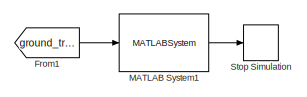
[diagram: root canvas - part 1/3, top left region]
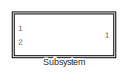
[diagram: root canvas - part 2/3, middle right region]
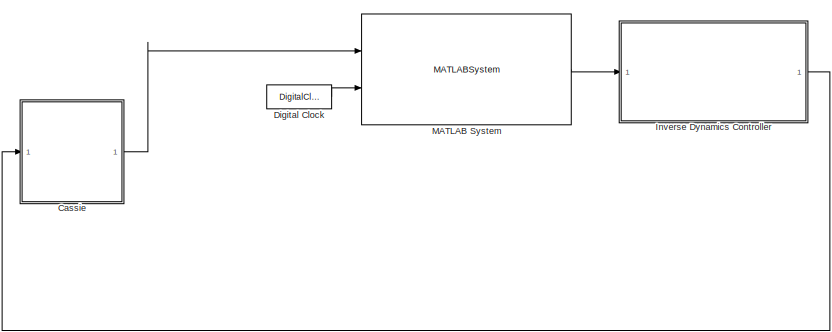
[diagram: root canvas - part 3/3, bottom left region]
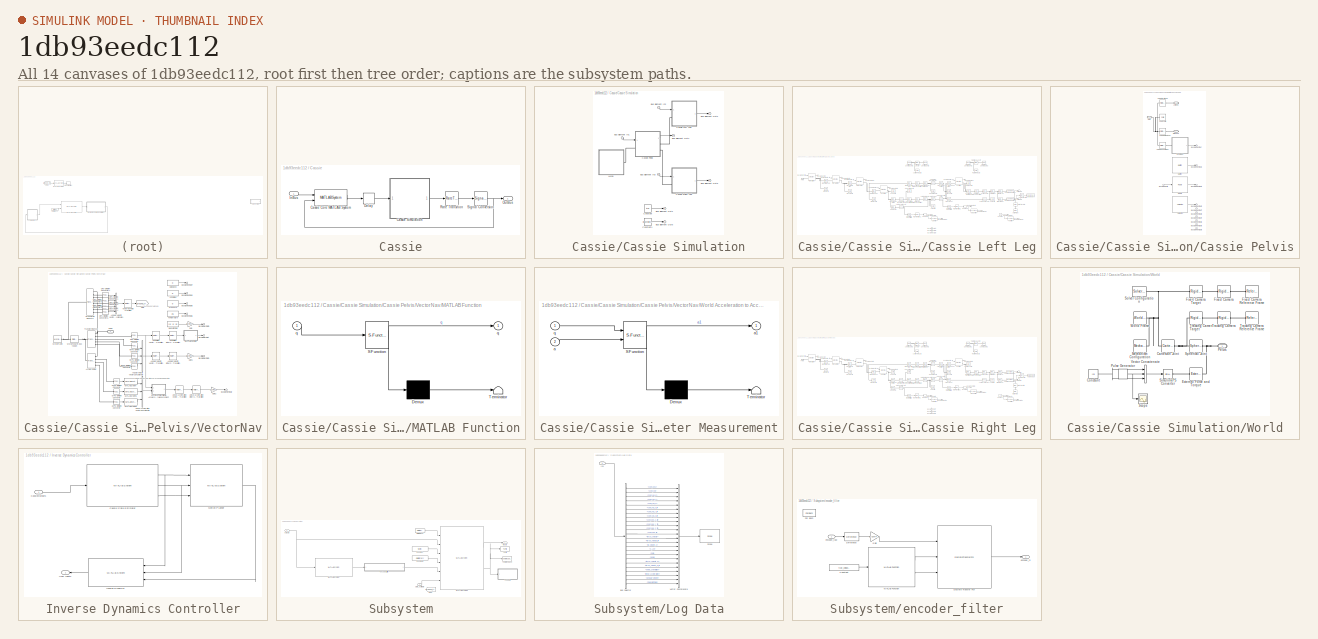
[diagram: thumbnail index - all 14 canvases of the model, root first then tree order]
MODEL slx_1db93eedc112
KIND model
CONFIG AbsTol = auto
CONFIG EnableMultiTasking = on
CONFIG FixedStep = 0.0005
CONFIG InitFcn = isSim = 1;\nPreFunctions.CustomInitFcn;\nPreFunctions.simulationInitFcn\n
CONFIG MaxStep = auto
CONFIG MinStep = auto
CONFIG RelTol = auto
CONFIG SampleTimeConstraint = Unconstrained
CONFIG Solver = VariableStepAuto
CONFIG SolverName = VariableStepAuto
CONFIG StartTime = 0
CONFIG StopTime = 12
BLOCK [SubSystem] Cassie
  InitFcn = % Start clock at initialization (used for computing real time performance)\ninitTime = tic;\n\n% Import bus definitions\nCassieModule.importBuses;
  Ports = [1, 1]
  RequestExecContextInheritance = off
  StartFcn = % Store build time\nbuildTime = toc(initTime);
  StopFcn = % Store computation time\ncomputationTime = toc(initTime) - buildTime;\n\n% Get simulation time\nsimulationTime = get_param(bdroot, 'SimulationTime');\n\n% Compute real time performance\npercentRealTime = 100*simulationTime/computationTime;\n\n% Display\nfprintf('Build time: %0.2f seconds \n', buildTime);\nfprintf('Simulation time: %0.2f seconds \n', simulationTime);\nfprintf('Computation time: %0.2f seconds ...<+85ch>
  Variant = off
BLOCK [MATLABSystem] Cassie/Cassie Core MATLAB System
  MaskDisplay = disp('CassieCoreSim');
  MaskType = CassieCoreSim
  Ports = [2, 2]
  SimulateUsing = Code generation
  System = CassieCoreSim
BLOCK [SubSystem] Cassie/Cassie Simulation
  Ports = [1, 1]
  RequestExecContextInheritance = off
  ShowPortLabels = none
  Variant = off
BLOCK [Inport] Cassie/Cassie Simulation/Bus Element In1
  IconDisplay = Port number
BLOCK [Inport] Cassie/Cassie Simulation/Bus Element In2
  IconDisplay = Port number
BLOCK [Inport] Cassie/Cassie Simulation/Bus Element In3
  IconDisplay = Port number
BLOCK [Outport] Cassie/Cassie Simulation/Bus Element Out1
  IconDisplay = Port number
BLOCK [Outport] Cassie/Cassie Simulation/Bus Element Out2
  IconDisplay = Port number
BLOCK [Outport] Cassie/Cassie Simulation/Bus Element Out3
  IconDisplay = Port number
BLOCK [Outport] Cassie/Cassie Simulation/Bus Element Out4
  IconDisplay = Port number
BLOCK [Outport] Cassie/Cassie Simulation/Bus Element Out5
  IconDisplay = Port number
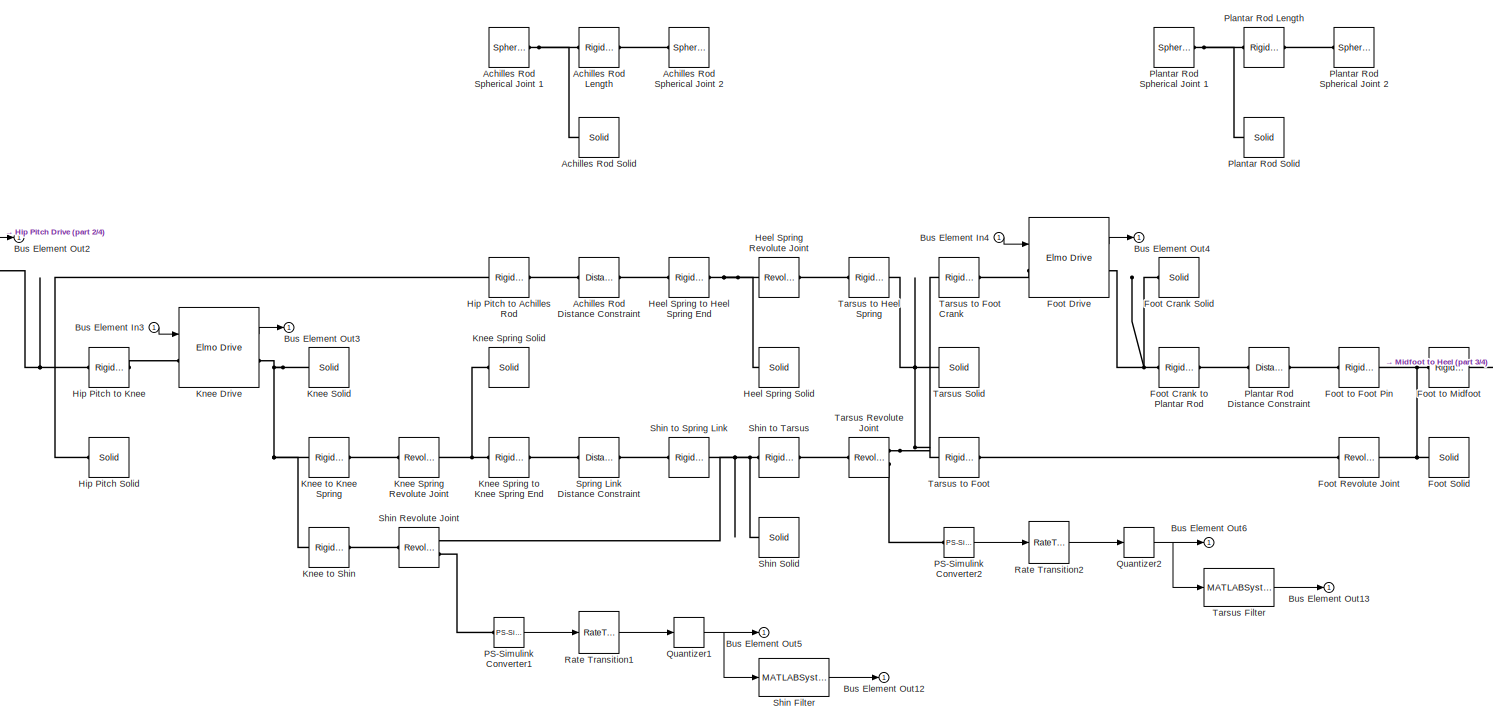
[diagram: Cassie/Cassie Simulation/Cassie Left Leg - part 1/4, center side, full height]
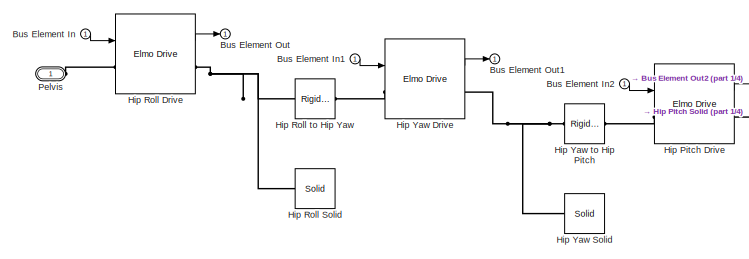
[diagram: Cassie/Cassie Simulation/Cassie Left Leg - part 2/4, middle left region]
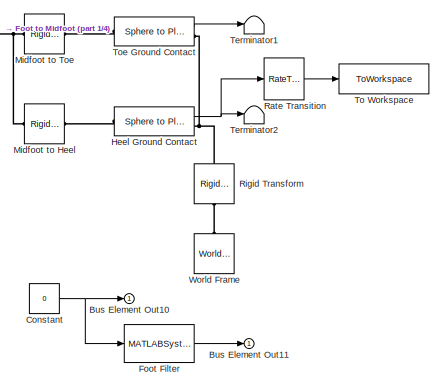
[diagram: Cassie/Cassie Simulation/Cassie Left Leg - part 3/4, middle right region]
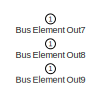
[diagram: Cassie/Cassie Simulation/Cassie Left Leg - part 4/4, bottom center region]
BLOCK [SubSystem] Cassie/Cassie Simulation/Cassie Left Leg
  AncestorBlock = CassieLibrary/Simulation/Cassie Leg
  Ports = [1, 1, 0, 0, 0, 1]
  RequestExecContextInheritance = off
  Variant = off
BLOCK [Reference] Cassie/Cassie Simulation/Cassie Left Leg/Achilles Rod Distance Constraint  REF=sm_lib/Constraints/Distance
Constraint
  Ports = [0, 0, 0, 0, 0, 1, 1]
  SourceBlock = sm_lib/Constraints/Distance\nConstraint
  SourceProductBaseCode = MS
  SourceProductName = Simscape Multibody
  SourceType = Distance\nConstraint
BLOCK [Reference] Cassie/Cassie Simulation/Cassie Left Leg/Achilles Rod Length  REF=sm_lib/Frames and
Transforms/Rigid
Transform
  Commented = on
  Ports = [0, 0, 0, 0, 0, 1, 1]
  SourceBlock = sm_lib/Frames and\nTransforms/Rigid\nTransform
  SourceProductBaseCode = MS
  SourceProductName = Simscape Multibody
  SourceType = Rigid\nTransform
BLOCK [Reference] Cassie/Cassie Simulation/Cassie Left Leg/Achilles Rod Solid  REF=sm_lib/Body Elements/Solid
  Commented = on
  Ports = [0, 0, 0, 0, 0, 0, 1]
  SourceBlock = sm_lib/Body Elements/Solid
  SourceProductBaseCode = MS
  SourceProductName = Simscape Multibody
  SourceType = Solid
BLOCK [Reference] Cassie/Cassie Simulation/Cassie Left Leg/Achilles Rod Spherical Joint 1  REF=sm_lib/Joints/Spherical
Joint
  Commented = on
  Ports = [0, 0, 0, 0, 0, 1, 1]
  SourceBlock = sm_lib/Joints/Spherical\nJoint
  SourceProductBaseCode = MS
  SourceProductName = Simscape Multibody
  SourceType = Spherical\nJoint
BLOCK [Reference] Cassie/Cassie Simulation/Cassie Left Leg/Achilles Rod Spherical Joint 2  REF=sm_lib/Joints/Spherical
Joint
  Commented = on
  Ports = [0, 0, 0, 0, 0, 1, 1]
  SourceBlock = sm_lib/Joints/Spherical\nJoint
  SourceProductBaseCode = MS
  SourceProductName = Simscape Multibody
  SourceType = Spherical\nJoint
BLOCK [Inport] Cassie/Cassie Simulation/Cassie Left Leg/Bus Element In
  IconDisplay = Port number
BLOCK [Inport] Cassie/Cassie Simulation/Cassie Left Leg/Bus Element In1
  IconDisplay = Port number
BLOCK [Inport] Cassie/Cassie Simulation/Cassie Left Leg/Bus Element In2
  IconDisplay = Port number
BLOCK [Inport] Cassie/Cassie Simulation/Cassie Left Leg/Bus Element In3
  IconDisplay = Port number
BLOCK [Inport] Cassie/Cassie Simulation/Cassie Left Leg/Bus Element In4
  IconDisplay = Port number
BLOCK [Outport] Cassie/Cassie Simulation/Cassie Left Leg/Bus Element Out
  IconDisplay = Port number
BLOCK [Outport] Cassie/Cassie Simulation/Cassie Left Leg/Bus Element Out1
  IconDisplay = Port number
BLOCK [Outport] Cassie/Cassie Simulation/Cassie Left Leg/Bus Element Out10
  IconDisplay = Port number
BLOCK [Outport] Cassie/Cassie Simulation/Cassie Left Leg/Bus Element Out11
  IconDisplay = Port number
BLOCK [Outport] Cassie/Cassie Simulation/Cassie Left Leg/Bus Element Out12
  IconDisplay = Port number
BLOCK [Outport] Cassie/Cassie Simulation/Cassie Left Leg/Bus Element Out13
  IconDisplay = Port number
BLOCK [Outport] Cassie/Cassie Simulation/Cassie Left Leg/Bus Element Out2
  IconDisplay = Port number
BLOCK [Outport] Cassie/Cassie Simulation/Cassie Left Leg/Bus Element Out3
  IconDisplay = Port number
BLOCK [Outport] Cassie/Cassie Simulation/Cassie Left Leg/Bus Element Out4
  IconDisplay = Port number
BLOCK [Outport] Cassie/Cassie Simulation/Cassie Left Leg/Bus Element Out5
  IconDisplay = Port number
BLOCK [Outport] Cassie/Cassie Simulation/Cassie Left Leg/Bus Element Out6
  IconDisplay = Port number
BLOCK [Outport] Cassie/Cassie Simulation/Cassie Left Leg/Bus Element Out7
  IconDisplay = Port number
BLOCK [Outport] Cassie/Cassie Simulation/Cassie Left Leg/Bus Element Out8
  IconDisplay = Port number
BLOCK [Outport] Cassie/Cassie Simulation/Cassie Left Leg/Bus Element Out9
  IconDisplay = Port number
BLOCK [Constant] Cassie/Cassie Simulation/Cassie Left Leg/Constant
  Value = 0
BLOCK [Reference] Cassie/Cassie Simulation/Cassie Left Leg/Foot Crank Solid  REF=sm_lib/Body Elements/Solid
  Ports = [0, 0, 0, 0, 0, 0, 1]
  SourceBlock = sm_lib/Body Elements/Solid
  SourceProductBaseCode = MS
  SourceProductName = Simscape Multibody
  SourceType = Solid
BLOCK [Reference] Cassie/Cassie Simulation/Cassie Left Leg/Foot Crank to Plantar Rod  REF=sm_lib/Frames and
Transforms/Rigid
Transform
  Ports = [0, 0, 0, 0, 0, 1, 1]
  SourceBlock = sm_lib/Frames and\nTransforms/Rigid\nTransform
  SourceProductBaseCode = MS
  SourceProductName = Simscape Multibody
  SourceType = Rigid\nTransform
BLOCK [Reference] Cassie/Cassie Simulation/Cassie Left Leg/Foot Drive  REF=ComponentLibrary/Simulation/Elmo Drive
  Ports = [1, 1, 0, 0, 0, 1, 1]
  SourceBlock = ComponentLibrary/Simulation/Elmo Drive
BLOCK [MATLABSystem] Cassie/Cassie Simulation/Cassie Left Leg/Foot Filter
  MaskDisplay = disp('Filter');
  MaskType = FilterSystem
  Ports = [1, 1]
  SimulateUsing = Code generation
  System = FilterSystem
  a = [1 -1.76575295625865 0.790448801800725]
  b = [12.3479227710395 12.3479227710395 -12.3479227710395 -12.3479227710395]
BLOCK [Reference] Cassie/Cassie Simulation/Cassie Left Leg/Foot Revolute Joint  REF=sm_lib/Joints/Revolute Joint
  Ports = [0, 0, 0, 0, 0, 1, 1]
  SourceBlock = sm_lib/Joints/Revolute Joint
  SourceProductBaseCode = MS
  SourceProductName = Simscape Multibody
  SourceType = Revolute Joint
BLOCK [Reference] Cassie/Cassie Simulation/Cassie Left Leg/Foot Solid  REF=sm_lib/Body Elements/Solid
  Ports = [0, 0, 0, 0, 0, 0, 1]
  SourceBlock = sm_lib/Body Elements/Solid
  SourceProductBaseCode = MS
  SourceProductName = Simscape Multibody
  SourceType = Solid
BLOCK [Reference] Cassie/Cassie Simulation/Cassie Left Leg/Foot to Foot Pin  REF=sm_lib/Frames and
Transforms/Rigid
Transform
  Ports = [0, 0, 0, 0, 0, 1, 1]
  SourceBlock = sm_lib/Frames and\nTransforms/Rigid\nTransform
  SourceProductBaseCode = MS
  SourceProductName = Simscape Multibody
  SourceType = Rigid\nTransform
BLOCK [Reference] Cassie/Cassie Simulation/Cassie Left Leg/Foot to Midfoot  REF=sm_lib/Frames and
Transforms/Rigid
Transform
  Ports = [0, 0, 0, 0, 0, 1, 1]
  SourceBlock = sm_lib/Frames and\nTransforms/Rigid\nTransform
  SourceProductBaseCode = MS
  SourceProductName = Simscape Multibody
  SourceType = Rigid\nTransform
BLOCK [Reference] Cassie/Cassie Simulation/Cassie Left Leg/Heel Ground Contact  REF=Contact_Forces_Lib/3D/Sphere to Plane Force
  Ports = [0, 1, 0, 0, 0, 1, 1]
  SourceBlock = Contact_Forces_Lib/3D/Sphere to Plane Force
  SourceProductName = Simscape Multibody Contact Forces Library
  SourceType = Sphere to Plane Force
BLOCK [Reference] Cassie/Cassie Simulation/Cassie Left Leg/Heel Spring Revolute Joint  REF=sm_lib/Joints/Revolute Joint
  Ports = [0, 0, 0, 0, 0, 1, 1]
  SourceBlock = sm_lib/Joints/Revolute Joint
  SourceProductBaseCode = MS
  SourceProductName = Simscape Multibody
  SourceType = Revolute Joint
BLOCK [Reference] Cassie/Cassie Simulation/Cassie Left Leg/Heel Spring Solid  REF=sm_lib/Body Elements/Solid
  Ports = [0, 0, 0, 0, 0, 0, 1]
  SourceBlock = sm_lib/Body Elements/Solid
  SourceProductBaseCode = MS
  SourceProductName = Simscape Multibody
  SourceType = Solid
BLOCK [Reference] Cassie/Cassie Simulation/Cassie Left Leg/Heel Spring to Heel Spring End  REF=sm_lib/Frames and
Transforms/Rigid
Transform
  Ports = [0, 0, 0, 0, 0, 1, 1]
  SourceBlock = sm_lib/Frames and\nTransforms/Rigid\nTransform
  SourceProductBaseCode = MS
  SourceProductName = Simscape Multibody
  SourceType = Rigid\nTransform
BLOCK [Reference] Cassie/Cassie Simulation/Cassie Left Leg/Hip Pitch Drive  REF=ComponentLibrary/Simulation/Elmo Drive
  Ports = [1, 1, 0, 0, 0, 1, 1]
  SourceBlock = ComponentLibrary/Simulation/Elmo Drive
BLOCK [Reference] Cassie/Cassie Simulation/Cassie Left Leg/Hip Pitch Solid  REF=sm_lib/Body Elements/Solid
  Ports = [0, 0, 0, 0, 0, 0, 1]
  SourceBlock = sm_lib/Body Elements/Solid
  SourceProductBaseCode = MS
  SourceProductName = Simscape Multibody
  SourceType = Solid
BLOCK [Reference] Cassie/Cassie Simulation/Cassie Left Leg/Hip Pitch to Achilles Rod  REF=sm_lib/Frames and
Transforms/Rigid
Transform
  Ports = [0, 0, 0, 0, 0, 1, 1]
  SourceBlock = sm_lib/Frames and\nTransforms/Rigid\nTransform
  SourceProductBaseCode = MS
  SourceProductName = Simscape Multibody
  SourceType = Rigid\nTransform
BLOCK [Reference] Cassie/Cassie Simulation/Cassie Left Leg/Hip Pitch to Knee  REF=sm_lib/Frames and
Transforms/Rigid
Transform
  Ports = [0, 0, 0, 0, 0, 1, 1]
  SourceBlock = sm_lib/Frames and\nTransforms/Rigid\nTransform
  SourceProductBaseCode = MS
  SourceProductName = Simscape Multibody
  SourceType = Rigid\nTransform
BLOCK [Reference] Cassie/Cassie Simulation/Cassie Left Leg/Hip Roll Drive  REF=ComponentLibrary/Simulation/Elmo Drive
  Ports = [1, 1, 0, 0, 0, 1, 1]
  SourceBlock = ComponentLibrary/Simulation/Elmo Drive
BLOCK [Reference] Cassie/Cassie Simulation/Cassie Left Leg/Hip Roll Solid  REF=sm_lib/Body Elements/Solid
  Ports = [0, 0, 0, 0, 0, 0, 1]
  SourceBlock = sm_lib/Body Elements/Solid
  SourceProductBaseCode = MS
  SourceProductName = Simscape Multibody
  SourceType = Solid
BLOCK [Reference] Cassie/Cassie Simulation/Cassie Left Leg/Hip Roll to Hip Yaw  REF=sm_lib/Frames and
Transforms/Rigid
Transform
  Ports = [0, 0, 0, 0, 0, 1, 1]
  SourceBlock = sm_lib/Frames and\nTransforms/Rigid\nTransform
  SourceProductBaseCode = MS
  SourceProductName = Simscape Multibody
  SourceType = Rigid\nTransform
BLOCK [Reference] Cassie/Cassie Simulation/Cassie Left Leg/Hip Yaw Drive  REF=ComponentLibrary/Simulation/Elmo Drive
  Ports = [1, 1, 0, 0, 0, 1, 1]
  SourceBlock = ComponentLibrary/Simulation/Elmo Drive
BLOCK [Reference] Cassie/Cassie Simulation/Cassie Left Leg/Hip Yaw Solid  REF=sm_lib/Body Elements/Solid
  Ports = [0, 0, 0, 0, 0, 0, 1]
  SourceBlock = sm_lib/Body Elements/Solid
  SourceProductBaseCode = MS
  SourceProductName = Simscape Multibody
  SourceType = Solid
BLOCK [Reference] Cassie/Cassie Simulation/Cassie Left Leg/Hip Yaw to Hip Pitch  REF=sm_lib/Frames and
Transforms/Rigid
Transform
  Ports = [0, 0, 0, 0, 0, 1, 1]
  SourceBlock = sm_lib/Frames and\nTransforms/Rigid\nTransform
  SourceProductBaseCode = MS
  SourceProductName = Simscape Multibody
  SourceType = Rigid\nTransform
BLOCK [Reference] Cassie/Cassie Simulation/Cassie Left Leg/Knee Drive  REF=ComponentLibrary/Simulation/Elmo Drive
  Ports = [1, 1, 0, 0, 0, 1, 1]
  SourceBlock = ComponentLibrary/Simulation/Elmo Drive
BLOCK [Reference] Cassie/Cassie Simulation/Cassie Left Leg/Knee Solid  REF=sm_lib/Body Elements/Solid
  Ports = [0, 0, 0, 0, 0, 0, 1]
  SourceBlock = sm_lib/Body Elements/Solid
  SourceProductBaseCode = MS
  SourceProductName = Simscape Multibody
  SourceType = Solid
BLOCK [Reference] Cassie/Cassie Simulation/Cassie Left Leg/Knee Spring Revolute Joint  REF=sm_lib/Joints/Revolute Joint
  Ports = [0, 0, 0, 0, 0, 1, 1]
  SourceBlock = sm_lib/Joints/Revolute Joint
  SourceProductBaseCode = MS
  SourceProductName = Simscape Multibody
  SourceType = Revolute Joint
BLOCK [Reference] Cassie/Cassie Simulation/Cassie Left Leg/Knee Spring Solid  REF=sm_lib/Body Elements/Solid
  Ports = [0, 0, 0, 0, 0, 0, 1]
  SourceBlock = sm_lib/Body Elements/Solid
  SourceProductBaseCode = MS
  SourceProductName = Simscape Multibody
  SourceType = Solid
BLOCK [Reference] Cassie/Cassie Simulation/Cassie Left Leg/Knee Spring to Knee Spring End  REF=sm_lib/Frames and
Transforms/Rigid
Transform
  Ports = [0, 0, 0, 0, 0, 1, 1]
  SourceBlock = sm_lib/Frames and\nTransforms/Rigid\nTransform
  SourceProductBaseCode = MS
  SourceProductName = Simscape Multibody
  SourceType = Rigid\nTransform
BLOCK [Reference] Cassie/Cassie Simulation/Cassie Left Leg/Knee to Knee Spring  REF=sm_lib/Frames and
Transforms/Rigid
Transform
  Ports = [0, 0, 0, 0, 0, 1, 1]
  SourceBlock = sm_lib/Frames and\nTransforms/Rigid\nTransform
  SourceProductBaseCode = MS
  SourceProductName = Simscape Multibody
  SourceType = Rigid\nTransform
BLOCK [Reference] Cassie/Cassie Simulation/Cassie Left Leg/Knee to Shin  REF=sm_lib/Frames and
Transforms/Rigid
Transform
  Ports = [0, 0, 0, 0, 0, 1, 1]
  SourceBlock = sm_lib/Frames and\nTransforms/Rigid\nTransform
  SourceProductBaseCode = MS
  SourceProductName = Simscape Multibody
  SourceType = Rigid\nTransform
BLOCK [Reference] Cassie/Cassie Simulation/Cassie Left Leg/Midfoot to Heel  REF=sm_lib/Frames and
Transforms/Rigid
Transform
  Ports = [0, 0, 0, 0, 0, 1, 1]
  SourceBlock = sm_lib/Frames and\nTransforms/Rigid\nTransform
  SourceProductBaseCode = MS
  SourceProductName = Simscape Multibody
  SourceType = Rigid\nTransform
BLOCK [Reference] Cassie/Cassie Simulation/Cassie Left Leg/Midfoot to Toe  REF=sm_lib/Frames and
Transforms/Rigid
Transform
  Ports = [0, 0, 0, 0, 0, 1, 1]
  SourceBlock = sm_lib/Frames and\nTransforms/Rigid\nTransform
  SourceProductBaseCode = MS
  SourceProductName = Simscape Multibody
  SourceType = Rigid\nTransform
BLOCK [Reference] Cassie/Cassie Simulation/Cassie Left Leg/PS-Simulink Converter1  REF=nesl_utility/PS-Simulink
Converter
  Ports = [0, 1, 0, 0, 0, 1]
  SourceBlock = nesl_utility/PS-Simulink\nConverter
  SourceProductBaseCode = SS
  SourceProductName = Simscape
  SourceType = PS-Simulink\nConverter
BLOCK [Reference] Cassie/Cassie Simulation/Cassie Left Leg/PS-Simulink Converter2  REF=nesl_utility/PS-Simulink
Converter
  Ports = [0, 1, 0, 0, 0, 1]
  SourceBlock = nesl_utility/PS-Simulink\nConverter
  SourceProductBaseCode = SS
  SourceProductName = Simscape
  SourceType = PS-Simulink\nConverter
BLOCK [PMIOPort] Cassie/Cassie Simulation/Cassie Left Leg/Pelvis
  Port = 1
  Side = Left
BLOCK [Reference] Cassie/Cassie Simulation/Cassie Left Leg/Plantar Rod Distance Constraint  REF=sm_lib/Constraints/Distance
Constraint
  Ports = [0, 0, 0, 0, 0, 1, 1]
  SourceBlock = sm_lib/Constraints/Distance\nConstraint
  SourceProductBaseCode = MS
  SourceProductName = Simscape Multibody
  SourceType = Distance\nConstraint
BLOCK [Reference] Cassie/Cassie Simulation/Cassie Left Leg/Plantar Rod Length  REF=sm_lib/Frames and
Transforms/Rigid
Transform
  Commented = on
  Ports = [0, 0, 0, 0, 0, 1, 1]
  SourceBlock = sm_lib/Frames and\nTransforms/Rigid\nTransform
  SourceProductBaseCode = MS
  SourceProductName = Simscape Multibody
  SourceType = Rigid\nTransform
BLOCK [Reference] Cassie/Cassie Simulation/Cassie Left Leg/Plantar Rod Solid  REF=sm_lib/Body Elements/Solid
  Commented = on
  Ports = [0, 0, 0, 0, 0, 0, 1]
  SourceBlock = sm_lib/Body Elements/Solid
  SourceProductBaseCode = MS
  SourceProductName = Simscape Multibody
  SourceType = Solid
BLOCK [Reference] Cassie/Cassie Simulation/Cassie Left Leg/Plantar Rod Spherical Joint 1  REF=sm_lib/Joints/Spherical
Joint
  Commented = on
  Ports = [0, 0, 0, 0, 0, 1, 1]
  SourceBlock = sm_lib/Joints/Spherical\nJoint
  SourceProductBaseCode = MS
  SourceProductName = Simscape Multibody
  SourceType = Spherical\nJoint
BLOCK [Reference] Cassie/Cassie Simulation/Cassie Left Leg/Plantar Rod Spherical Joint 2  REF=sm_lib/Joints/Spherical
Joint
  Commented = on
  Ports = [0, 0, 0, 0, 0, 1, 1]
  SourceBlock = sm_lib/Joints/Spherical\nJoint
  SourceProductBaseCode = MS
  SourceProductName = Simscape Multibody
  SourceType = Spherical\nJoint
BLOCK [Quantizer] Cassie/Cassie Simulation/Cassie Left Leg/Quantizer1
  QuantizationInterval = (2*pi)/2^19
BLOCK [Quantizer] Cassie/Cassie Simulation/Cassie Left Leg/Quantizer2
  QuantizationInterval = (2*pi)/2^19
BLOCK [RateTransition] Cassie/Cassie Simulation/Cassie Left Leg/Rate Transition
  OutPortSampleTime = 0.0005
BLOCK [RateTransition] Cassie/Cassie Simulation/Cassie Left Leg/Rate Transition1
  Deterministic = off
  OutPortSampleTimeOpt = Inherit
BLOCK [RateTransition] Cassie/Cassie Simulation/Cassie Left Leg/Rate Transition2
  Deterministic = off
  OutPortSampleTimeOpt = Inherit
BLOCK [Reference] Cassie/Cassie Simulation/Cassie Left Leg/Rigid Transform  REF=sm_lib/Frames and
Transforms/Rigid
Transform
  Ports = [0, 0, 0, 0, 0, 1, 1]
  SourceBlock = sm_lib/Frames and\nTransforms/Rigid\nTransform
  SourceProductBaseCode = MS
  SourceProductName = Simscape Multibody
  SourceType = Rigid\nTransform
BLOCK [MATLABSystem] Cassie/Cassie Simulation/Cassie Left Leg/Shin Filter
  MaskDisplay = disp('Filter');
  MaskType = FilterSystem
  Ports = [1, 1]
  SimulateUsing = Code generation
  System = FilterSystem
  a = [1 -1.76575295625865 0.790448801800725]
  b = [12.3479227710395 12.3479227710395 -12.3479227710395 -12.3479227710395]
BLOCK [Reference] Cassie/Cassie Simulation/Cassie Left Leg/Shin Revolute Joint  REF=sm_lib/Joints/Revolute Joint
  Ports = [0, 0, 0, 0, 0, 1, 2]
  SourceBlock = sm_lib/Joints/Revolute Joint
  SourceProductBaseCode = MS
  SourceProductName = Simscape Multibody
  SourceType = Revolute Joint
BLOCK [Reference] Cassie/Cassie Simulation/Cassie Left Leg/Shin Solid  REF=sm_lib/Body Elements/Solid
  Ports = [0, 0, 0, 0, 0, 0, 1]
  SourceBlock = sm_lib/Body Elements/Solid
  SourceProductBaseCode = MS
  SourceProductName = Simscape Multibody
  SourceType = Solid
BLOCK [Reference] Cassie/Cassie Simulation/Cassie Left Leg/Shin to Spring Link  REF=sm_lib/Frames and
Transforms/Rigid
Transform
  Ports = [0, 0, 0, 0, 0, 1, 1]
  SourceBlock = sm_lib/Frames and\nTransforms/Rigid\nTransform
  SourceProductBaseCode = MS
  SourceProductName = Simscape Multibody
  SourceType = Rigid\nTransform
BLOCK [Reference] Cassie/Cassie Simulation/Cassie Left Leg/Shin to Tarsus  REF=sm_lib/Frames and
Transforms/Rigid
Transform
  Ports = [0, 0, 0, 0, 0, 1, 1]
  SourceBlock = sm_lib/Frames and\nTransforms/Rigid\nTransform
  SourceProductBaseCode = MS
  SourceProductName = Simscape Multibody
  SourceType = Rigid\nTransform
BLOCK [Reference] Cassie/Cassie Simulation/Cassie Left Leg/Spring Link Distance Constraint  REF=sm_lib/Constraints/Distance
Constraint
  Ports = [0, 0, 0, 0, 0, 1, 1]
  SourceBlock = sm_lib/Constraints/Distance\nConstraint
  SourceProductBaseCode = MS
  SourceProductName = Simscape Multibody
  SourceType = Distance\nConstraint
BLOCK [MATLABSystem] Cassie/Cassie Simulation/Cassie Left Leg/Tarsus Filter
  MaskDisplay = disp('Filter');
  MaskType = FilterSystem
  Ports = [1, 1]
  SimulateUsing = Code generation
  System = FilterSystem
  a = [1 -1.76575295625865 0.790448801800725]
  b = [12.3479227710395 12.3479227710395 -12.3479227710395 -12.3479227710395]
BLOCK [Reference] Cassie/Cassie Simulation/Cassie Left Leg/Tarsus Revolute Joint  REF=sm_lib/Joints/Revolute Joint
  Ports = [0, 0, 0, 0, 0, 1, 2]
  SourceBlock = sm_lib/Joints/Revolute Joint
  SourceProductBaseCode = MS
  SourceProductName = Simscape Multibody
  SourceType = Revolute Joint
BLOCK [Reference] Cassie/Cassie Simulation/Cassie Left Leg/Tarsus Solid  REF=sm_lib/Body Elements/Solid
  Ports = [0, 0, 0, 0, 0, 0, 1]
  SourceBlock = sm_lib/Body Elements/Solid
  SourceProductBaseCode = MS
  SourceProductName = Simscape Multibody
  SourceType = Solid
BLOCK [Reference] Cassie/Cassie Simulation/Cassie Left Leg/Tarsus to Foot  REF=sm_lib/Frames and
Transforms/Rigid
Transform
  Ports = [0, 0, 0, 0, 0, 1, 1]
  SourceBlock = sm_lib/Frames and\nTransforms/Rigid\nTransform
  SourceProductBaseCode = MS
  SourceProductName = Simscape Multibody
  SourceType = Rigid\nTransform
BLOCK [Reference] Cassie/Cassie Simulation/Cassie Left Leg/Tarsus to Foot Crank  REF=sm_lib/Frames and
Transforms/Rigid
Transform
  Ports = [0, 0, 0, 0, 0, 1, 1]
  SourceBlock = sm_lib/Frames and\nTransforms/Rigid\nTransform
  SourceProductBaseCode = MS
  SourceProductName = Simscape Multibody
  SourceType = Rigid\nTransform
BLOCK [Reference] Cassie/Cassie Simulation/Cassie Left Leg/Tarsus to Heel Spring  REF=sm_lib/Frames and
Transforms/Rigid
Transform
  Ports = [0, 0, 0, 0, 0, 1, 1]
  SourceBlock = sm_lib/Frames and\nTransforms/Rigid\nTransform
  SourceProductBaseCode = MS
  SourceProductName = Simscape Multibody
  SourceType = Rigid\nTransform
BLOCK [Terminator] Cassie/Cassie Simulation/Cassie Left Leg/Terminator1
BLOCK [Terminator] Cassie/Cassie Simulation/Cassie Left Leg/Terminator2
BLOCK [ToWorkspace] Cassie/Cassie Simulation/Cassie Left Leg/To Workspace
  FixptAsFi = on
  MaxDataPoints = inf
  Ports = [1]
  SampleTime = -1
  Save2DSignal = 3-D array (concatenate along third dimension)
  SaveFormat = Timeseries
  VariableName = left_heel_contact
BLOCK [Reference] Cassie/Cassie Simulation/Cassie Left Leg/Toe Ground Contact  REF=Contact_Forces_Lib/3D/Sphere to Plane Force
  Ports = [0, 1, 0, 0, 0, 1, 1]
  SourceBlock = Contact_Forces_Lib/3D/Sphere to Plane Force
  SourceProductName = Simscape Multibody Contact Forces Library
  SourceType = Sphere to Plane Force
BLOCK [Reference] Cassie/Cassie Simulation/Cassie Left Leg/World Frame  REF=sm_lib/Frames and
Transforms/World Frame
  Ports = [0, 0, 0, 0, 0, 0, 1]
  SourceBlock = sm_lib/Frames and\nTransforms/World Frame
  SourceProductBaseCode = MS
  SourceProductName = Simscape Multibody
  SourceType = World Frame
BLOCK [SubSystem] Cassie/Cassie Simulation/Cassie Pelvis
  Ports = [1, 1, 0, 0, 0, 1, 2]
  RequestExecContextInheritance = off
  Variant = off
BLOCK [Reference] Cassie/Cassie Simulation/Cassie Pelvis/Battery  REF=ComponentLibrary/Simulation/Battery
  Ports = [0, 1]
  SourceBlock = ComponentLibrary/Simulation/Battery
BLOCK [Inport] Cassie/Cassie Simulation/Cassie Pelvis/Bus Element In
  IconDisplay = Port number
BLOCK [Outport] Cassie/Cassie Simulation/Cassie Pelvis/Bus Element Out
  IconDisplay = Port number
BLOCK [Outport] Cassie/Cassie Simulation/Cassie Pelvis/Bus Element Out1
  IconDisplay = Port number
BLOCK [Outport] Cassie/Cassie Simulation/Cassie Pelvis/Bus Element Out2
  IconDisplay = Port number
BLOCK [Outport] Cassie/Cassie Simulation/Cassie Pelvis/Bus Element Out3
  IconDisplay = Port number
BLOCK [Outport] Cassie/Cassie Simulation/Cassie Pelvis/Bus Element Out4
  IconDisplay = Port number
BLOCK [Outport] Cassie/Cassie Simulation/Cassie Pelvis/Bus Element Out5
  IconDisplay = Port number
BLOCK [Outport] Cassie/Cassie Simulation/Cassie Pelvis/Bus Element Out6
  IconDisplay = Port number
BLOCK [Outport] Cassie/Cassie Simulation/Cassie Pelvis/Bus Element Out7
  IconDisplay = Port number
BLOCK [Outport] Cassie/Cassie Simulation/Cassie Pelvis/Bus Element Out8
  IconDisplay = Port number
BLOCK [Outport] Cassie/Cassie Simulation/Cassie Pelvis/Bus Element Out9
  IconDisplay = Port number
BLOCK [PMIOPort] Cassie/Cassie Simulation/Cassie Pelvis/Left Leg
  Port = 1
  Side = Right
BLOCK [Reference] Cassie/Cassie Simulation/Cassie Pelvis/Pelvis Solid  REF=sm_lib/Body Elements/Solid
  Ports = [0, 0, 0, 0, 0, 0, 1]
  SourceBlock = sm_lib/Body Elements/Solid
  SourceProductBaseCode = MS
  SourceProductName = Simscape Multibody
  SourceType = Solid
BLOCK [Reference] Cassie/Cassie Simulation/Cassie Pelvis/Pelvis to Left Leg  REF=sm_lib/Frames and
Transforms/Rigid
Transform
  Ports = [0, 0, 0, 0, 0, 1, 1]
  SourceBlock = sm_lib/Frames and\nTransforms/Rigid\nTransform
  SourceProductBaseCode = MS
  SourceProductName = Simscape Multibody
  SourceType = Rigid\nTransform
BLOCK [Reference] Cassie/Cassie Simulation/Cassie Pelvis/Pelvis to Right Leg  REF=sm_lib/Frames and
Transforms/Rigid
Transform
  Ports = [0, 0, 0, 0, 0, 1, 1]
  SourceBlock = sm_lib/Frames and\nTransforms/Rigid\nTransform
  SourceProductBaseCode = MS
  SourceProductName = Simscape Multibody
  SourceType = Rigid\nTransform
BLOCK [Reference] Cassie/Cassie Simulation/Cassie Pelvis/Pelvis to VectorNav  REF=sm_lib/Frames and
Transforms/Rigid
Transform
  Ports = [0, 0, 0, 0, 0, 1, 1]
  SourceBlock = sm_lib/Frames and\nTransforms/Rigid\nTransform
  SourceProductBaseCode = MS
  SourceProductName = Simscape Multibody
  SourceType = Rigid\nTransform
BLOCK [Reference] Cassie/Cassie Simulation/Cassie Pelvis/Radio  REF=ComponentLibrary/Simulation/Radio
  Ports = [1, 1]
  SourceBlock = ComponentLibrary/Simulation/Radio
BLOCK [PMIOPort] Cassie/Cassie Simulation/Cassie Pelvis/Right Leg
  Port = 2
  Side = Right
BLOCK [Reference] Cassie/Cassie Simulation/Cassie Pelvis/Target PC  REF=ComponentLibrary/Simulation/Target PC
  Ports = [0, 1]
  SourceBlock = ComponentLibrary/Simulation/Target PC
BLOCK [SubSystem] Cassie/Cassie Simulation/Cassie Pelvis/VectorNav
  AncestorBlock = ComponentLibrary/Simulation/VectorNav
  Ports = [0, 1, 0, 0, 0, 1]
  RequestExecContextInheritance = off
  Variant = off
BLOCK [Reference] Cassie/Cassie Simulation/Cassie Pelvis/VectorNav/Accelerometer  REF=sm_lib/Frames and
Transforms/Transform
Sensor
  Ports = [0, 0, 0, 0, 0, 1, 4]
  SourceBlock = sm_lib/Frames and\nTransforms/Transform\nSensor
  SourceProductBaseCode = MS
  SourceProductName = Simscape Multibody
  SourceType = Transform\nSensor
BLOCK [RateTransition] Cassie/Cassie Simulation/Cassie Pelvis/VectorNav/Angular Velocity EtherCAT Rate Transition
  Deterministic = off
  OutPortSampleTimeOpt = Inherit
BLOCK [Concatenate] Cassie/Cassie Simulation/Cassie Pelvis/VectorNav/Angular Velocity Vector Concatenate
  NumInputs = 3
  Ports = [3, 1]
BLOCK [Concatenate] Cassie/Cassie Simulation/Cassie Pelvis/VectorNav/Angular Velocity Vector Concatenate1
  NumInputs = 7
  Ports = [7, 1]
BLOCK [RateTransition] Cassie/Cassie Simulation/Cassie Pelvis/VectorNav/Angular Velocity VectorNav Rate Transition
  Deterministic = off
  OutPortSampleTime = VectorNavModule.sampleTime
BLOCK [Outport] Cassie/Cassie Simulation/Cassie Pelvis/VectorNav/Bus Element Out
  IconDisplay = Port number
BLOCK [Outport] Cassie/Cassie Simulation/Cassie Pelvis/VectorNav/Bus Element Out1
  IconDisplay = Port number
BLOCK [Outport] Cassie/Cassie Simulation/Cassie Pelvis/VectorNav/Bus Element Out2
  IconDisplay = Port number
BLOCK [Outport] Cassie/Cassie Simulation/Cassie Pelvis/VectorNav/Bus Element Out3
  IconDisplay = Port number
BLOCK [Outport] Cassie/Cassie Simulation/Cassie Pelvis/VectorNav/Bus Element Out4
  IconDisplay = Port number
BLOCK [Outport] Cassie/Cassie Simulation/Cassie Pelvis/VectorNav/Bus Element Out5
  IconDisplay = Port number
BLOCK [Outport] Cassie/Cassie Simulation/Cassie Pelvis/VectorNav/Bus Element Out6
  IconDisplay = Port number
BLOCK [Outport] Cassie/Cassie Simulation/Cassie Pelvis/VectorNav/Bus Element Out7
  IconDisplay = Port number
BLOCK [Constant] Cassie/Cassie Simulation/Cassie Pelvis/VectorNav/Data Good
  OutDataTypeStr = boolean
  Value = 0
BLOCK [Gain] Cassie/Cassie Simulation/Cassie Pelvis/VectorNav/Gain
  Gain = postRotationMatrix
  Multiplication = Matrix(K*u)
  OutDataTypeStr = Inherit: Inherit via internal rule
  ParamDataTypeStr = Inherit: Inherit via internal rule
  SaturateOnIntegerOverflow = off
BLOCK [Gain] Cassie/Cassie Simulation/Cassie Pelvis/VectorNav/Gain1
  Gain = postRotationMatrix
  Multiplication = Matrix(K*u)
  OutDataTypeStr = Inherit: Inherit via internal rule
  ParamDataTypeStr = Inherit: Inherit via internal rule
  SaturateOnIntegerOverflow = off
BLOCK [Gain] Cassie/Cassie Simulation/Cassie Pelvis/VectorNav/Gain2
  Gain = postRotationMatrix
  Multiplication = Matrix(K*u)
  OutDataTypeStr = Inherit: Inherit via internal rule
  ParamDataTypeStr = Inherit: Inherit via internal rule
  SaturateOnIntegerOverflow = off
BLOCK [Goto] Cassie/Cassie Simulation/Cassie Pelvis/VectorNav/Goto
  GotoTag = ground_truth
  TagVisibility = global
BLOCK [Reference] Cassie/Cassie Simulation/Cassie Pelvis/VectorNav/Ground truth measure  REF=sm_lib/Frames and
Transforms/Transform
Sensor
  Ports = [0, 0, 0, 0, 0, 1, 8]
  SourceBlock = sm_lib/Frames and\nTransforms/Transform\nSensor
  SourceProductBaseCode = MS
  SourceProductName = Simscape Multibody
  SourceType = Transform\nSensor
BLOCK [RateTransition] Cassie/Cassie Simulation/Cassie Pelvis/VectorNav/Linear Acceleration EtherCAT Rate Transition
  Deterministic = off
  InitialCondition = [0; 0; 0]
  OutPortSampleTimeOpt = Inherit
BLOCK [Concatenate] Cassie/Cassie Simulation/Cassie Pelvis/VectorNav/Linear Acceleration Vector Concatenate
  NumInputs = 3
  Ports = [3, 1]
BLOCK [RateTransition] Cassie/Cassie Simulation/Cassie Pelvis/VectorNav/Linear Acceleration VectorNav Rate Transition
  Deterministic = off
  InitialCondition = [0; 0; 0]
  OutPortSampleTime = VectorNavModule.sampleTime
BLOCK [SubSystem] Cassie/Cassie Simulation/Cassie Pelvis/VectorNav/MATLAB Function
  ErrorFcn = Stateflow.Translate.translate
  PermitHierarchicalResolution = ExplicitOnly
  Ports = [1, 1]
  RequestExecContextInheritance = off
  SFBlockType = MATLAB Function
  TreatAsAtomicUnit = on
  Variant = off
BLOCK [Demux] Cassie/Cassie Simulation/Cassie Pelvis/VectorNav/MATLAB Function/ Demux 
  Outputs = 1
  Ports = [1, 1]
BLOCK [S-Function] Cassie/Cassie Simulation/Cassie Pelvis/VectorNav/MATLAB Function/ SFunction 
  EnableBusSupport = on
  FunctionName = sf_sfun
  Parameters = postRotationMatrix,preRotationMatrix
  PortCounts = [1 2]
  Ports = [1, 2]
  SFcnIsStateOwnerBlock = off
  SFunctionDeploymentMode = off
  Tag = Stateflow S-Function ID_Simulator 7
BLOCK [Terminator] Cassie/Cassie Simulation/Cassie Pelvis/VectorNav/MATLAB Function/ Terminator 
BLOCK [Outport] Cassie/Cassie Simulation/Cassie Pelvis/VectorNav/MATLAB Function/q
  IconDisplay = Port number
BLOCK [Inport] Cassie/Cassie Simulation/Cassie Pelvis/VectorNav/MATLAB Function/q 
  IconDisplay = Port number
BLOCK [MATLABSystem] Cassie/Cassie Simulation/Cassie Pelvis/VectorNav/MATLAB System
  MaskDisplay = disp('Filter');
  MaskType = FilterSystem
  Ports = [1, 1]
  SimulateUsing = Code generation
  System = FilterSystem
  a = [1 -0.8]
  b = 0.2
BLOCK [Reference] Cassie/Cassie Simulation/Cassie Pelvis/VectorNav/MATLAB System1  REF=ComponentLibrary/Simulation/VectorNav/MATLAB System
  Ports = [1, 1]
  SourceBlock = ComponentLibrary/Simulation/VectorNav/MATLAB System
  SourceType = FilterSystem
BLOCK [Reference] Cassie/Cassie Simulation/Cassie Pelvis/VectorNav/MATLAB System2  REF=ComponentLibrary/Simulation/VectorNav/MATLAB System
  Ports = [1, 1]
  SourceBlock = ComponentLibrary/Simulation/VectorNav/MATLAB System
  SourceType = FilterSystem
BLOCK [Constant] Cassie/Cassie Simulation/Cassie Pelvis/VectorNav/Magnetic Field
  Value = [0; 0; 0]
BLOCK [RateTransition] Cassie/Cassie Simulation/Cassie Pelvis/VectorNav/Orientation EtherCAT Rate Transition
  Deterministic = off
  InitialCondition = [0; 0; 0; 1]
  OutPortSampleTimeOpt = Inherit
BLOCK [RateTransition] Cassie/Cassie Simulation/Cassie Pelvis/VectorNav/Orientation VectorNav Rate Transition
  Deterministic = off
  InitialCondition = [0; 0; 0; 1]
  OutPortSampleTime = VectorNavModule.sampleTime
BLOCK [PMIOPort] Cassie/Cassie Simulation/Cassie Pelvis/VectorNav/Pelvis
  Port = 1
  Side = Left
BLOCK [Constant] Cassie/Cassie Simulation/Cassie Pelvis/VectorNav/Pressure
  Value = 0
BLOCK [Reference] Cassie/Cassie Simulation/Cassie Pelvis/VectorNav/Q PS-Simulink Converter  REF=nesl_utility/PS-Simulink
Converter
  Ports = [0, 1, 0, 0, 0, 1]
  SourceBlock = nesl_utility/PS-Simulink\nConverter
  SourceProductBaseCode = SS
  SourceProductName = Simscape
  SourceType = PS-Simulink\nConverter
BLOCK [Reference] Cassie/Cassie Simulation/Cassie Pelvis/VectorNav/Q PS-Simulink Converter1  REF=nesl_utility/PS-Simulink
Converter
  Ports = [0, 1, 0, 0, 0, 1]
  SourceBlock = nesl_utility/PS-Simulink\nConverter
  SourceProductBaseCode = SS
  SourceProductName = Simscape
  SourceType = PS-Simulink\nConverter
BLOCK [Reference] Cassie/Cassie Simulation/Cassie Pelvis/VectorNav/Q PS-Simulink Converter2  REF=nesl_utility/PS-Simulink
Converter
  Ports = [0, 1, 0, 0, 0, 1]
  SourceBlock = nesl_utility/PS-Simulink\nConverter
  SourceProductBaseCode = SS
  SourceProductName = Simscape
  SourceType = PS-Simulink\nConverter
BLOCK [Reference] Cassie/Cassie Simulation/Cassie Pelvis/VectorNav/Q PS-Simulink Converter3  REF=nesl_utility/PS-Simulink
Converter
  Ports = [0, 1, 0, 0, 0, 1]
  SourceBlock = nesl_utility/PS-Simulink\nConverter
  SourceProductBaseCode = SS
  SourceProductName = Simscape
  SourceType = PS-Simulink\nConverter
BLOCK [Reference] Cassie/Cassie Simulation/Cassie Pelvis/VectorNav/Q PS-Simulink Converter4  REF=nesl_utility/PS-Simulink
Converter
  Ports = [0, 1, 0, 0, 0, 1]
  SourceBlock = nesl_utility/PS-Simulink\nConverter
  SourceProductBaseCode = SS
  SourceProductName = Simscape
  SourceType = PS-Simulink\nConverter
BLOCK [Reference] Cassie/Cassie Simulation/Cassie Pelvis/VectorNav/Q PS-Simulink Converter5  REF=nesl_utility/PS-Simulink
Converter
  Ports = [0, 1, 0, 0, 0, 1]
  SourceBlock = nesl_utility/PS-Simulink\nConverter
  SourceProductBaseCode = SS
  SourceProductName = Simscape
  SourceType = PS-Simulink\nConverter
BLOCK [Reference] Cassie/Cassie Simulation/Cassie Pelvis/VectorNav/Q PS-Simulink Converter6  REF=nesl_utility/PS-Simulink
Converter
  Ports = [0, 1, 0, 0, 0, 1]
  SourceBlock = nesl_utility/PS-Simulink\nConverter
  SourceProductBaseCode = SS
  SourceProductName = Simscape
  SourceType = PS-Simulink\nConverter
BLOCK [Reference] Cassie/Cassie Simulation/Cassie Pelvis/VectorNav/Q PS-Simulink Converter7  REF=nesl_utility/PS-Simulink
Converter
  Ports = [0, 1, 0, 0, 0, 1]
  SourceBlock = nesl_utility/PS-Simulink\nConverter
  SourceProductBaseCode = SS
  SourceProductName = Simscape
  SourceType = PS-Simulink\nConverter
BLOCK [Constant] Cassie/Cassie Simulation/Cassie Pelvis/VectorNav/Temperature
  Value = 25
BLOCK [Reference] Cassie/Cassie Simulation/Cassie Pelvis/VectorNav/Transform Sensor  REF=sm_lib/Frames and
Transforms/Transform
Sensor
  Ports = [0, 0, 0, 0, 0, 1, 5]
  SourceBlock = sm_lib/Frames and\nTransforms/Transform\nSensor
  SourceProductBaseCode = MS
  SourceProductName = Simscape Multibody
  SourceType = Transform\nSensor
BLOCK [Constant] Cassie/Cassie Simulation/Cassie Pelvis/VectorNav/VPE Status
  OutDataTypeStr = uint16
  Value = 0
BLOCK [RateTransition] Cassie/Cassie Simulation/Cassie Pelvis/VectorNav/VectorNav Rate Transition
  Deterministic = off
  OutPortSampleTime = 0.0005
BLOCK [SubSystem] Cassie/Cassie Simulation/Cassie Pelvis/VectorNav/World Acceleration to Accelerometer Measurement
  ErrorFcn = Stateflow.Translate.translate
  PermitHierarchicalResolution = ExplicitOnly
  Ports = [2, 1]
  RequestExecContextInheritance = off
  SFBlockType = MATLAB Function
  TreatAsAtomicUnit = on
  Variant = off
BLOCK [Demux] Cassie/Cassie Simulation/Cassie Pelvis/VectorNav/World Acceleration to Accelerometer Measurement/ Demux 
  Outputs = 1
  Ports = [1, 1]
BLOCK [S-Function] Cassie/Cassie Simulation/Cassie Pelvis/VectorNav/World Acceleration to Accelerometer Measurement/ SFunction 
  EnableBusSupport = on
  FunctionName = sf_sfun
  PortCounts = [2 2]
  Ports = [2, 2]
  SFcnIsStateOwnerBlock = off
  SFunctionDeploymentMode = off
  Tag = Stateflow S-Function ID_Simulator 10
BLOCK [Terminator] Cassie/Cassie Simulation/Cassie Pelvis/VectorNav/World Acceleration to Accelerometer Measurement/ Terminator 
BLOCK [Inport] Cassie/Cassie Simulation/Cassie Pelvis/VectorNav/World Acceleration to Accelerometer Measurement/a
  IconDisplay = Port number
  Port = 2
BLOCK [Outport] Cassie/Cassie Simulation/Cassie Pelvis/VectorNav/World Acceleration to Accelerometer Measurement/a1
  IconDisplay = Port number
BLOCK [Inport] Cassie/Cassie Simulation/Cassie Pelvis/VectorNav/World Acceleration to Accelerometer Measurement/q
  IconDisplay = Port number
BLOCK [Reference] Cassie/Cassie Simulation/Cassie Pelvis/VectorNav/World Frame  REF=sm_lib/Frames and
Transforms/World Frame
  Ports = [0, 0, 0, 0, 0, 0, 1]
  SourceBlock = sm_lib/Frames and\nTransforms/World Frame
  SourceProductBaseCode = MS
  SourceProductName = Simscape Multibody
  SourceType = World Frame
BLOCK [Reference] Cassie/Cassie Simulation/Cassie Pelvis/VectorNav/World To North-East-Down  REF=sm_lib/Frames and
Transforms/Rigid
Transform
  Ports = [0, 0, 0, 0, 0, 1, 1]
  SourceBlock = sm_lib/Frames and\nTransforms/Rigid\nTransform
  SourceProductBaseCode = MS
  SourceProductName = Simscape Multibody
  SourceType = Rigid\nTransform
BLOCK [Reference] Cassie/Cassie Simulation/Cassie Pelvis/VectorNav/ax PS-Simulink Converter  REF=nesl_utility/PS-Simulink
Converter
  Ports = [0, 1, 0, 0, 0, 1]
  SourceBlock = nesl_utility/PS-Simulink\nConverter
  SourceProductBaseCode = SS
  SourceProductName = Simscape
  SourceType = PS-Simulink\nConverter
BLOCK [Reference] Cassie/Cassie Simulation/Cassie Pelvis/VectorNav/ay PS-Simulink Converter  REF=nesl_utility/PS-Simulink
Converter
  Ports = [0, 1, 0, 0, 0, 1]
  SourceBlock = nesl_utility/PS-Simulink\nConverter
  SourceProductBaseCode = SS
  SourceProductName = Simscape
  SourceType = PS-Simulink\nConverter
BLOCK [Reference] Cassie/Cassie Simulation/Cassie Pelvis/VectorNav/az PS-Simulink Converter  REF=nesl_utility/PS-Simulink
Converter
  Ports = [0, 1, 0, 0, 0, 1]
  SourceBlock = nesl_utility/PS-Simulink\nConverter
  SourceProductBaseCode = SS
  SourceProductName = Simscape
  SourceType = PS-Simulink\nConverter
BLOCK [Reference] Cassie/Cassie Simulation/Cassie Pelvis/VectorNav/wx PS-Simulink Converter  REF=nesl_utility/PS-Simulink
Converter
  Ports = [0, 1, 0, 0, 0, 1]
  SourceBlock = nesl_utility/PS-Simulink\nConverter
  SourceProductBaseCode = SS
  SourceProductName = Simscape
  SourceType = PS-Simulink\nConverter
BLOCK [Reference] Cassie/Cassie Simulation/Cassie Pelvis/VectorNav/wy PS-Simulink Converter  REF=nesl_utility/PS-Simulink
Converter
  Ports = [0, 1, 0, 0, 0, 1]
  SourceBlock = nesl_utility/PS-Simulink\nConverter
  SourceProductBaseCode = SS
  SourceProductName = Simscape
  SourceType = PS-Simulink\nConverter
BLOCK [Reference] Cassie/Cassie Simulation/Cassie Pelvis/VectorNav/wz PS-Simulink Converter  REF=nesl_utility/PS-Simulink
Converter
  Ports = [0, 1, 0, 0, 0, 1]
  SourceBlock = nesl_utility/PS-Simulink\nConverter
  SourceProductBaseCode = SS
  SourceProductName = Simscape
  SourceType = PS-Simulink\nConverter
BLOCK [PMIOPort] Cassie/Cassie Simulation/Cassie Pelvis/World
  Port = 3
  Side = Left
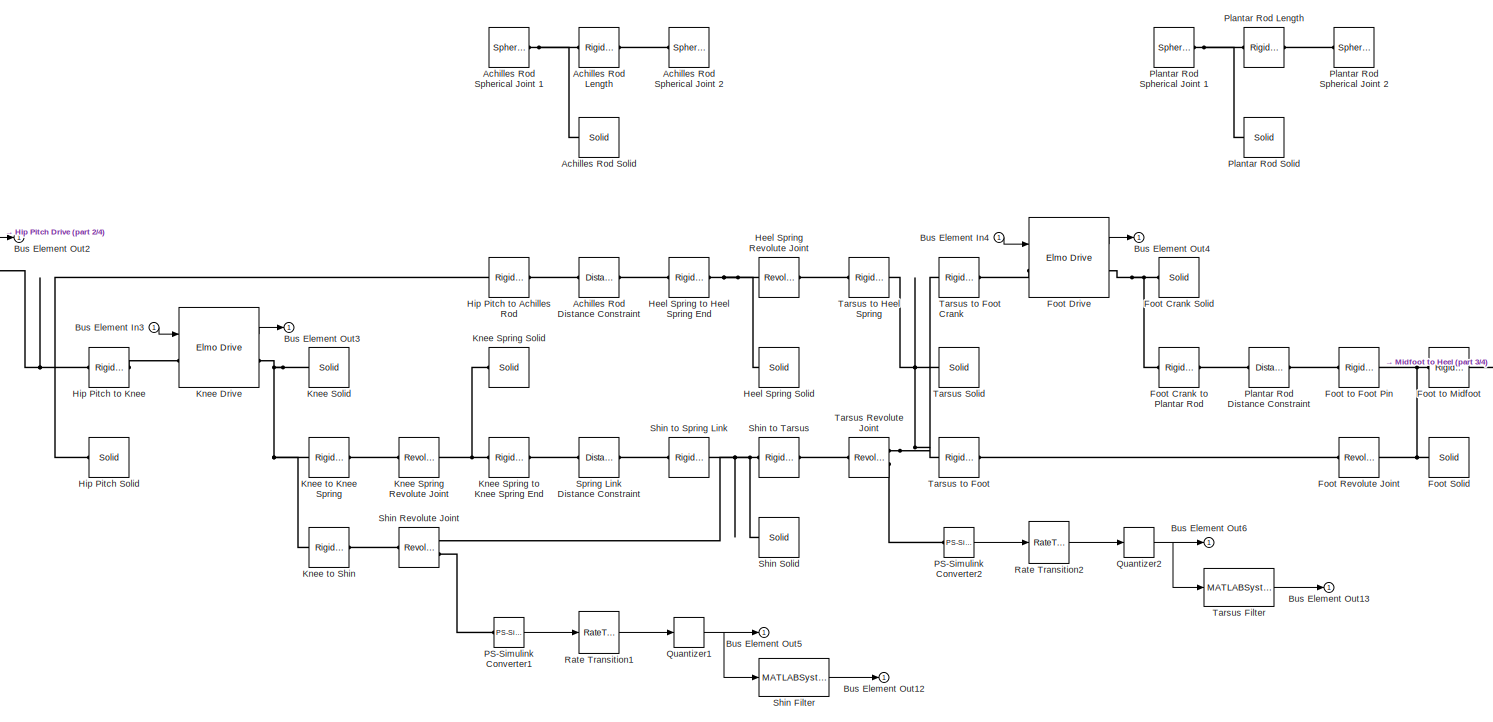
[diagram: Cassie/Cassie Simulation/Cassie Right Leg - part 1/4, center side, full height]
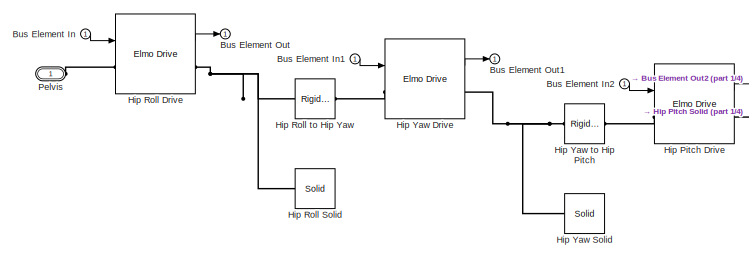
[diagram: Cassie/Cassie Simulation/Cassie Right Leg - part 2/4, middle left region]
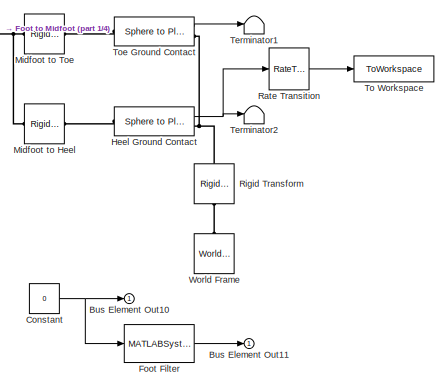
[diagram: Cassie/Cassie Simulation/Cassie Right Leg - part 3/4, middle right region]
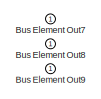
[diagram: Cassie/Cassie Simulation/Cassie Right Leg - part 4/4, bottom center region]
BLOCK [SubSystem] Cassie/Cassie Simulation/Cassie Right Leg
  AncestorBlock = CassieLibrary/Simulation/Cassie Leg
  Ports = [1, 1, 0, 0, 0, 1]
  RequestExecContextInheritance = off
  Variant = off
BLOCK [Reference] Cassie/Cassie Simulation/Cassie Right Leg/Achilles Rod Distance Constraint  REF=sm_lib/Constraints/Distance
Constraint
  Ports = [0, 0, 0, 0, 0, 1, 1]
  SourceBlock = sm_lib/Constraints/Distance\nConstraint
  SourceProductBaseCode = MS
  SourceProductName = Simscape Multibody
  SourceType = Distance\nConstraint
BLOCK [Reference] Cassie/Cassie Simulation/Cassie Right Leg/Achilles Rod Length  REF=sm_lib/Frames and
Transforms/Rigid
Transform
  Commented = on
  Ports = [0, 0, 0, 0, 0, 1, 1]
  SourceBlock = sm_lib/Frames and\nTransforms/Rigid\nTransform
  SourceProductBaseCode = MS
  SourceProductName = Simscape Multibody
  SourceType = Rigid\nTransform
BLOCK [Reference] Cassie/Cassie Simulation/Cassie Right Leg/Achilles Rod Solid  REF=sm_lib/Body Elements/Solid
  Commented = on
  Ports = [0, 0, 0, 0, 0, 0, 1]
  SourceBlock = sm_lib/Body Elements/Solid
  SourceProductBaseCode = MS
  SourceProductName = Simscape Multibody
  SourceType = Solid
BLOCK [Reference] Cassie/Cassie Simulation/Cassie Right Leg/Achilles Rod Spherical Joint 1  REF=sm_lib/Joints/Spherical
Joint
  Commented = on
  Ports = [0, 0, 0, 0, 0, 1, 1]
  SourceBlock = sm_lib/Joints/Spherical\nJoint
  SourceProductBaseCode = MS
  SourceProductName = Simscape Multibody
  SourceType = Spherical\nJoint
BLOCK [Reference] Cassie/Cassie Simulation/Cassie Right Leg/Achilles Rod Spherical Joint 2  REF=sm_lib/Joints/Spherical
Joint
  Commented = on
  Ports = [0, 0, 0, 0, 0, 1, 1]
  SourceBlock = sm_lib/Joints/Spherical\nJoint
  SourceProductBaseCode = MS
  SourceProductName = Simscape Multibody
  SourceType = Spherical\nJoint
BLOCK [Inport] Cassie/Cassie Simulation/Cassie Right Leg/Bus Element In
  IconDisplay = Port number
BLOCK [Inport] Cassie/Cassie Simulation/Cassie Right Leg/Bus Element In1
  IconDisplay = Port number
BLOCK [Inport] Cassie/Cassie Simulation/Cassie Right Leg/Bus Element In2
  IconDisplay = Port number
BLOCK [Inport] Cassie/Cassie Simulation/Cassie Right Leg/Bus Element In3
  IconDisplay = Port number
BLOCK [Inport] Cassie/Cassie Simulation/Cassie Right Leg/Bus Element In4
  IconDisplay = Port number
BLOCK [Outport] Cassie/Cassie Simulation/Cassie Right Leg/Bus Element Out
  IconDisplay = Port number
BLOCK [Outport] Cassie/Cassie Simulation/Cassie Right Leg/Bus Element Out1
  IconDisplay = Port number
BLOCK [Outport] Cassie/Cassie Simulation/Cassie Right Leg/Bus Element Out10
  IconDisplay = Port number
BLOCK [Outport] Cassie/Cassie Simulation/Cassie Right Leg/Bus Element Out11
  IconDisplay = Port number
BLOCK [Outport] Cassie/Cassie Simulation/Cassie Right Leg/Bus Element Out12
  IconDisplay = Port number
BLOCK [Outport] Cassie/Cassie Simulation/Cassie Right Leg/Bus Element Out13
  IconDisplay = Port number
BLOCK [Outport] Cassie/Cassie Simulation/Cassie Right Leg/Bus Element Out2
  IconDisplay = Port number
BLOCK [Outport] Cassie/Cassie Simulation/Cassie Right Leg/Bus Element Out3
  IconDisplay = Port number
BLOCK [Outport] Cassie/Cassie Simulation/Cassie Right Leg/Bus Element Out4
  IconDisplay = Port number
BLOCK [Outport] Cassie/Cassie Simulation/Cassie Right Leg/Bus Element Out5
  IconDisplay = Port number
BLOCK [Outport] Cassie/Cassie Simulation/Cassie Right Leg/Bus Element Out6
  IconDisplay = Port number
BLOCK [Outport] Cassie/Cassie Simulation/Cassie Right Leg/Bus Element Out7
  IconDisplay = Port number
BLOCK [Outport] Cassie/Cassie Simulation/Cassie Right Leg/Bus Element Out8
  IconDisplay = Port number
BLOCK [Outport] Cassie/Cassie Simulation/Cassie Right Leg/Bus Element Out9
  IconDisplay = Port number
BLOCK [Constant] Cassie/Cassie Simulation/Cassie Right Leg/Constant
  Value = 0
BLOCK [Reference] Cassie/Cassie Simulation/Cassie Right Leg/Foot Crank Solid  REF=sm_lib/Body Elements/Solid
  Ports = [0, 0, 0, 0, 0, 0, 1]
  SourceBlock = sm_lib/Body Elements/Solid
  SourceProductBaseCode = MS
  SourceProductName = Simscape Multibody
  SourceType = Solid
BLOCK [Reference] Cassie/Cassie Simulation/Cassie Right Leg/Foot Crank to Plantar Rod  REF=sm_lib/Frames and
Transforms/Rigid
Transform
  Ports = [0, 0, 0, 0, 0, 1, 1]
  SourceBlock = sm_lib/Frames and\nTransforms/Rigid\nTransform
  SourceProductBaseCode = MS
  SourceProductName = Simscape Multibody
  SourceType = Rigid\nTransform
BLOCK [Reference] Cassie/Cassie Simulation/Cassie Right Leg/Foot Drive  REF=ComponentLibrary/Simulation/Elmo Drive
  Ports = [1, 1, 0, 0, 0, 1, 1]
  SourceBlock = ComponentLibrary/Simulation/Elmo Drive
BLOCK [MATLABSystem] Cassie/Cassie Simulation/Cassie Right Leg/Foot Filter
  MaskDisplay = disp('Filter');
  MaskType = FilterSystem
  Ports = [1, 1]
  SimulateUsing = Code generation
  System = FilterSystem
  a = [1 -1.76575295625865 0.790448801800725]
  b = [12.3479227710395 12.3479227710395 -12.3479227710395 -12.3479227710395]
BLOCK [Reference] Cassie/Cassie Simulation/Cassie Right Leg/Foot Revolute Joint  REF=sm_lib/Joints/Revolute Joint
  Ports = [0, 0, 0, 0, 0, 1, 1]
  SourceBlock = sm_lib/Joints/Revolute Joint
  SourceProductBaseCode = MS
  SourceProductName = Simscape Multibody
  SourceType = Revolute Joint
BLOCK [Reference] Cassie/Cassie Simulation/Cassie Right Leg/Foot Solid  REF=sm_lib/Body Elements/Solid
  Ports = [0, 0, 0, 0, 0, 0, 1]
  SourceBlock = sm_lib/Body Elements/Solid
  SourceProductBaseCode = MS
  SourceProductName = Simscape Multibody
  SourceType = Solid
BLOCK [Reference] Cassie/Cassie Simulation/Cassie Right Leg/Foot to Foot Pin  REF=sm_lib/Frames and
Transforms/Rigid
Transform
  Ports = [0, 0, 0, 0, 0, 1, 1]
  SourceBlock = sm_lib/Frames and\nTransforms/Rigid\nTransform
  SourceProductBaseCode = MS
  SourceProductName = Simscape Multibody
  SourceType = Rigid\nTransform
BLOCK [Reference] Cassie/Cassie Simulation/Cassie Right Leg/Foot to Midfoot  REF=sm_lib/Frames and
Transforms/Rigid
Transform
  Ports = [0, 0, 0, 0, 0, 1, 1]
  SourceBlock = sm_lib/Frames and\nTransforms/Rigid\nTransform
  SourceProductBaseCode = MS
  SourceProductName = Simscape Multibody
  SourceType = Rigid\nTransform
BLOCK [Reference] Cassie/Cassie Simulation/Cassie Right Leg/Heel Ground Contact  REF=Contact_Forces_Lib/3D/Sphere to Plane Force
  Ports = [0, 1, 0, 0, 0, 1, 1]
  SourceBlock = Contact_Forces_Lib/3D/Sphere to Plane Force
  SourceProductName = Simscape Multibody Contact Forces Library
  SourceType = Sphere to Plane Force
BLOCK [Reference] Cassie/Cassie Simulation/Cassie Right Leg/Heel Spring Revolute Joint  REF=sm_lib/Joints/Revolute Joint
  Ports = [0, 0, 0, 0, 0, 1, 1]
  SourceBlock = sm_lib/Joints/Revolute Joint
  SourceProductBaseCode = MS
  SourceProductName = Simscape Multibody
  SourceType = Revolute Joint
BLOCK [Reference] Cassie/Cassie Simulation/Cassie Right Leg/Heel Spring Solid  REF=sm_lib/Body Elements/Solid
  Ports = [0, 0, 0, 0, 0, 0, 1]
  SourceBlock = sm_lib/Body Elements/Solid
  SourceProductBaseCode = MS
  SourceProductName = Simscape Multibody
  SourceType = Solid
BLOCK [Reference] Cassie/Cassie Simulation/Cassie Right Leg/Heel Spring to Heel Spring End  REF=sm_lib/Frames and
Transforms/Rigid
Transform
  Ports = [0, 0, 0, 0, 0, 1, 1]
  SourceBlock = sm_lib/Frames and\nTransforms/Rigid\nTransform
  SourceProductBaseCode = MS
  SourceProductName = Simscape Multibody
  SourceType = Rigid\nTransform
BLOCK [Reference] Cassie/Cassie Simulation/Cassie Right Leg/Hip Pitch Drive  REF=ComponentLibrary/Simulation/Elmo Drive
  Ports = [1, 1, 0, 0, 0, 1, 1]
  SourceBlock = ComponentLibrary/Simulation/Elmo Drive
BLOCK [Reference] Cassie/Cassie Simulation/Cassie Right Leg/Hip Pitch Solid  REF=sm_lib/Body Elements/Solid
  Ports = [0, 0, 0, 0, 0, 0, 1]
  SourceBlock = sm_lib/Body Elements/Solid
  SourceProductBaseCode = MS
  SourceProductName = Simscape Multibody
  SourceType = Solid
BLOCK [Reference] Cassie/Cassie Simulation/Cassie Right Leg/Hip Pitch to Achilles Rod  REF=sm_lib/Frames and
Transforms/Rigid
Transform
  Ports = [0, 0, 0, 0, 0, 1, 1]
  SourceBlock = sm_lib/Frames and\nTransforms/Rigid\nTransform
  SourceProductBaseCode = MS
  SourceProductName = Simscape Multibody
  SourceType = Rigid\nTransform
BLOCK [Reference] Cassie/Cassie Simulation/Cassie Right Leg/Hip Pitch to Knee  REF=sm_lib/Frames and
Transforms/Rigid
Transform
  Ports = [0, 0, 0, 0, 0, 1, 1]
  SourceBlock = sm_lib/Frames and\nTransforms/Rigid\nTransform
  SourceProductBaseCode = MS
  SourceProductName = Simscape Multibody
  SourceType = Rigid\nTransform
BLOCK [Reference] Cassie/Cassie Simulation/Cassie Right Leg/Hip Roll Drive  REF=ComponentLibrary/Simulation/Elmo Drive
  Ports = [1, 1, 0, 0, 0, 1, 1]
  SourceBlock = ComponentLibrary/Simulation/Elmo Drive
BLOCK [Reference] Cassie/Cassie Simulation/Cassie Right Leg/Hip Roll Solid  REF=sm_lib/Body Elements/Solid
  Ports = [0, 0, 0, 0, 0, 0, 1]
  SourceBlock = sm_lib/Body Elements/Solid
  SourceProductBaseCode = MS
  SourceProductName = Simscape Multibody
  SourceType = Solid
BLOCK [Reference] Cassie/Cassie Simulation/Cassie Right Leg/Hip Roll to Hip Yaw  REF=sm_lib/Frames and
Transforms/Rigid
Transform
  Ports = [0, 0, 0, 0, 0, 1, 1]
  SourceBlock = sm_lib/Frames and\nTransforms/Rigid\nTransform
  SourceProductBaseCode = MS
  SourceProductName = Simscape Multibody
  SourceType = Rigid\nTransform
BLOCK [Reference] Cassie/Cassie Simulation/Cassie Right Leg/Hip Yaw Drive  REF=ComponentLibrary/Simulation/Elmo Drive
  Ports = [1, 1, 0, 0, 0, 1, 1]
  SourceBlock = ComponentLibrary/Simulation/Elmo Drive
BLOCK [Reference] Cassie/Cassie Simulation/Cassie Right Leg/Hip Yaw Solid  REF=sm_lib/Body Elements/Solid
  Ports = [0, 0, 0, 0, 0, 0, 1]
  SourceBlock = sm_lib/Body Elements/Solid
  SourceProductBaseCode = MS
  SourceProductName = Simscape Multibody
  SourceType = Solid
BLOCK [Reference] Cassie/Cassie Simulation/Cassie Right Leg/Hip Yaw to Hip Pitch  REF=sm_lib/Frames and
Transforms/Rigid
Transform
  Ports = [0, 0, 0, 0, 0, 1, 1]
  SourceBlock = sm_lib/Frames and\nTransforms/Rigid\nTransform
  SourceProductBaseCode = MS
  SourceProductName = Simscape Multibody
  SourceType = Rigid\nTransform
BLOCK [Reference] Cassie/Cassie Simulation/Cassie Right Leg/Knee Drive  REF=ComponentLibrary/Simulation/Elmo Drive
  Ports = [1, 1, 0, 0, 0, 1, 1]
  SourceBlock = ComponentLibrary/Simulation/Elmo Drive
BLOCK [Reference] Cassie/Cassie Simulation/Cassie Right Leg/Knee Solid  REF=sm_lib/Body Elements/Solid
  Ports = [0, 0, 0, 0, 0, 0, 1]
  SourceBlock = sm_lib/Body Elements/Solid
  SourceProductBaseCode = MS
  SourceProductName = Simscape Multibody
  SourceType = Solid
BLOCK [Reference] Cassie/Cassie Simulation/Cassie Right Leg/Knee Spring Revolute Joint  REF=sm_lib/Joints/Revolute Joint
  Ports = [0, 0, 0, 0, 0, 1, 1]
  SourceBlock = sm_lib/Joints/Revolute Joint
  SourceProductBaseCode = MS
  SourceProductName = Simscape Multibody
  SourceType = Revolute Joint
BLOCK [Reference] Cassie/Cassie Simulation/Cassie Right Leg/Knee Spring Solid  REF=sm_lib/Body Elements/Solid
  Ports = [0, 0, 0, 0, 0, 0, 1]
  SourceBlock = sm_lib/Body Elements/Solid
  SourceProductBaseCode = MS
  SourceProductName = Simscape Multibody
  SourceType = Solid
BLOCK [Reference] Cassie/Cassie Simulation/Cassie Right Leg/Knee Spring to Knee Spring End  REF=sm_lib/Frames and
Transforms/Rigid
Transform
  Ports = [0, 0, 0, 0, 0, 1, 1]
  SourceBlock = sm_lib/Frames and\nTransforms/Rigid\nTransform
  SourceProductBaseCode = MS
  SourceProductName = Simscape Multibody
  SourceType = Rigid\nTransform
BLOCK [Reference] Cassie/Cassie Simulation/Cassie Right Leg/Knee to Knee Spring  REF=sm_lib/Frames and
Transforms/Rigid
Transform
  Ports = [0, 0, 0, 0, 0, 1, 1]
  SourceBlock = sm_lib/Frames and\nTransforms/Rigid\nTransform
  SourceProductBaseCode = MS
  SourceProductName = Simscape Multibody
  SourceType = Rigid\nTransform
BLOCK [Reference] Cassie/Cassie Simulation/Cassie Right Leg/Knee to Shin  REF=sm_lib/Frames and
Transforms/Rigid
Transform
  Ports = [0, 0, 0, 0, 0, 1, 1]
  SourceBlock = sm_lib/Frames and\nTransforms/Rigid\nTransform
  SourceProductBaseCode = MS
  SourceProductName = Simscape Multibody
  SourceType = Rigid\nTransform
BLOCK [Reference] Cassie/Cassie Simulation/Cassie Right Leg/Midfoot to Heel  REF=sm_lib/Frames and
Transforms/Rigid
Transform
  Ports = [0, 0, 0, 0, 0, 1, 1]
  SourceBlock = sm_lib/Frames and\nTransforms/Rigid\nTransform
  SourceProductBaseCode = MS
  SourceProductName = Simscape Multibody
  SourceType = Rigid\nTransform
BLOCK [Reference] Cassie/Cassie Simulation/Cassie Right Leg/Midfoot to Toe  REF=sm_lib/Frames and
Transforms/Rigid
Transform
  Ports = [0, 0, 0, 0, 0, 1, 1]
  SourceBlock = sm_lib/Frames and\nTransforms/Rigid\nTransform
  SourceProductBaseCode = MS
  SourceProductName = Simscape Multibody
  SourceType = Rigid\nTransform
BLOCK [Reference] Cassie/Cassie Simulation/Cassie Right Leg/PS-Simulink Converter1  REF=nesl_utility/PS-Simulink
Converter
  Ports = [0, 1, 0, 0, 0, 1]
  SourceBlock = nesl_utility/PS-Simulink\nConverter
  SourceProductBaseCode = SS
  SourceProductName = Simscape
  SourceType = PS-Simulink\nConverter
BLOCK [Reference] Cassie/Cassie Simulation/Cassie Right Leg/PS-Simulink Converter2  REF=nesl_utility/PS-Simulink
Converter
  Ports = [0, 1, 0, 0, 0, 1]
  SourceBlock = nesl_utility/PS-Simulink\nConverter
  SourceProductBaseCode = SS
  SourceProductName = Simscape
  SourceType = PS-Simulink\nConverter
BLOCK [PMIOPort] Cassie/Cassie Simulation/Cassie Right Leg/Pelvis
  Port = 1
  Side = Left
BLOCK [Reference] Cassie/Cassie Simulation/Cassie Right Leg/Plantar Rod Distance Constraint  REF=sm_lib/Constraints/Distance
Constraint
  Ports = [0, 0, 0, 0, 0, 1, 1]
  SourceBlock = sm_lib/Constraints/Distance\nConstraint
  SourceProductBaseCode = MS
  SourceProductName = Simscape Multibody
  SourceType = Distance\nConstraint
BLOCK [Reference] Cassie/Cassie Simulation/Cassie Right Leg/Plantar Rod Length  REF=sm_lib/Frames and
Transforms/Rigid
Transform
  Commented = on
  Ports = [0, 0, 0, 0, 0, 1, 1]
  SourceBlock = sm_lib/Frames and\nTransforms/Rigid\nTransform
  SourceProductBaseCode = MS
  SourceProductName = Simscape Multibody
  SourceType = Rigid\nTransform
BLOCK [Reference] Cassie/Cassie Simulation/Cassie Right Leg/Plantar Rod Solid  REF=sm_lib/Body Elements/Solid
  Commented = on
  Ports = [0, 0, 0, 0, 0, 0, 1]
  SourceBlock = sm_lib/Body Elements/Solid
  SourceProductBaseCode = MS
  SourceProductName = Simscape Multibody
  SourceType = Solid
BLOCK [Reference] Cassie/Cassie Simulation/Cassie Right Leg/Plantar Rod Spherical Joint 1  REF=sm_lib/Joints/Spherical
Joint
  Commented = on
  Ports = [0, 0, 0, 0, 0, 1, 1]
  SourceBlock = sm_lib/Joints/Spherical\nJoint
  SourceProductBaseCode = MS
  SourceProductName = Simscape Multibody
  SourceType = Spherical\nJoint
BLOCK [Reference] Cassie/Cassie Simulation/Cassie Right Leg/Plantar Rod Spherical Joint 2  REF=sm_lib/Joints/Spherical
Joint
  Commented = on
  Ports = [0, 0, 0, 0, 0, 1, 1]
  SourceBlock = sm_lib/Joints/Spherical\nJoint
  SourceProductBaseCode = MS
  SourceProductName = Simscape Multibody
  SourceType = Spherical\nJoint
BLOCK [Quantizer] Cassie/Cassie Simulation/Cassie Right Leg/Quantizer1
  QuantizationInterval = (2*pi)/2^19
BLOCK [Quantizer] Cassie/Cassie Simulation/Cassie Right Leg/Quantizer2
  QuantizationInterval = (2*pi)/2^19
BLOCK [RateTransition] Cassie/Cassie Simulation/Cassie Right Leg/Rate Transition
  OutPortSampleTime = 0.0005
BLOCK [RateTransition] Cassie/Cassie Simulation/Cassie Right Leg/Rate Transition1
  Deterministic = off
  OutPortSampleTimeOpt = Inherit
BLOCK [RateTransition] Cassie/Cassie Simulation/Cassie Right Leg/Rate Transition2
  Deterministic = off
  OutPortSampleTimeOpt = Inherit
BLOCK [Reference] Cassie/Cassie Simulation/Cassie Right Leg/Rigid Transform  REF=sm_lib/Frames and
Transforms/Rigid
Transform
  Ports = [0, 0, 0, 0, 0, 1, 1]
  SourceBlock = sm_lib/Frames and\nTransforms/Rigid\nTransform
  SourceProductBaseCode = MS
  SourceProductName = Simscape Multibody
  SourceType = Rigid\nTransform
BLOCK [MATLABSystem] Cassie/Cassie Simulation/Cassie Right Leg/Shin Filter
  MaskDisplay = disp('Filter');
  MaskType = FilterSystem
  Ports = [1, 1]
  SimulateUsing = Code generation
  System = FilterSystem
  a = [1 -1.76575295625865 0.790448801800725]
  b = [12.3479227710395 12.3479227710395 -12.3479227710395 -12.3479227710395]
BLOCK [Reference] Cassie/Cassie Simulation/Cassie Right Leg/Shin Revolute Joint  REF=sm_lib/Joints/Revolute Joint
  Ports = [0, 0, 0, 0, 0, 1, 2]
  SourceBlock = sm_lib/Joints/Revolute Joint
  SourceProductBaseCode = MS
  SourceProductName = Simscape Multibody
  SourceType = Revolute Joint
BLOCK [Reference] Cassie/Cassie Simulation/Cassie Right Leg/Shin Solid  REF=sm_lib/Body Elements/Solid
  Ports = [0, 0, 0, 0, 0, 0, 1]
  SourceBlock = sm_lib/Body Elements/Solid
  SourceProductBaseCode = MS
  SourceProductName = Simscape Multibody
  SourceType = Solid
BLOCK [Reference] Cassie/Cassie Simulation/Cassie Right Leg/Shin to Spring Link  REF=sm_lib/Frames and
Transforms/Rigid
Transform
  Ports = [0, 0, 0, 0, 0, 1, 1]
  SourceBlock = sm_lib/Frames and\nTransforms/Rigid\nTransform
  SourceProductBaseCode = MS
  SourceProductName = Simscape Multibody
  SourceType = Rigid\nTransform
BLOCK [Reference] Cassie/Cassie Simulation/Cassie Right Leg/Shin to Tarsus  REF=sm_lib/Frames and
Transforms/Rigid
Transform
  Ports = [0, 0, 0, 0, 0, 1, 1]
  SourceBlock = sm_lib/Frames and\nTransforms/Rigid\nTransform
  SourceProductBaseCode = MS
  SourceProductName = Simscape Multibody
  SourceType = Rigid\nTransform
BLOCK [Reference] Cassie/Cassie Simulation/Cassie Right Leg/Spring Link Distance Constraint  REF=sm_lib/Constraints/Distance
Constraint
  Ports = [0, 0, 0, 0, 0, 1, 1]
  SourceBlock = sm_lib/Constraints/Distance\nConstraint
  SourceProductBaseCode = MS
  SourceProductName = Simscape Multibody
  SourceType = Distance\nConstraint
BLOCK [MATLABSystem] Cassie/Cassie Simulation/Cassie Right Leg/Tarsus Filter
  MaskDisplay = disp('Filter');
  MaskType = FilterSystem
  Ports = [1, 1]
  SimulateUsing = Code generation
  System = FilterSystem
  a = [1 -1.76575295625865 0.790448801800725]
  b = [12.3479227710395 12.3479227710395 -12.3479227710395 -12.3479227710395]
BLOCK [Reference] Cassie/Cassie Simulation/Cassie Right Leg/Tarsus Revolute Joint  REF=sm_lib/Joints/Revolute Joint
  Ports = [0, 0, 0, 0, 0, 1, 2]
  SourceBlock = sm_lib/Joints/Revolute Joint
  SourceProductBaseCode = MS
  SourceProductName = Simscape Multibody
  SourceType = Revolute Joint
BLOCK [Reference] Cassie/Cassie Simulation/Cassie Right Leg/Tarsus Solid  REF=sm_lib/Body Elements/Solid
  Ports = [0, 0, 0, 0, 0, 0, 1]
  SourceBlock = sm_lib/Body Elements/Solid
  SourceProductBaseCode = MS
  SourceProductName = Simscape Multibody
  SourceType = Solid
BLOCK [Reference] Cassie/Cassie Simulation/Cassie Right Leg/Tarsus to Foot  REF=sm_lib/Frames and
Transforms/Rigid
Transform
  Ports = [0, 0, 0, 0, 0, 1, 1]
  SourceBlock = sm_lib/Frames and\nTransforms/Rigid\nTransform
  SourceProductBaseCode = MS
  SourceProductName = Simscape Multibody
  SourceType = Rigid\nTransform
BLOCK [Reference] Cassie/Cassie Simulation/Cassie Right Leg/Tarsus to Foot Crank  REF=sm_lib/Frames and
Transforms/Rigid
Transform
  Ports = [0, 0, 0, 0, 0, 1, 1]
  SourceBlock = sm_lib/Frames and\nTransforms/Rigid\nTransform
  SourceProductBaseCode = MS
  SourceProductName = Simscape Multibody
  SourceType = Rigid\nTransform
BLOCK [Reference] Cassie/Cassie Simulation/Cassie Right Leg/Tarsus to Heel Spring  REF=sm_lib/Frames and
Transforms/Rigid
Transform
  Ports = [0, 0, 0, 0, 0, 1, 1]
  SourceBlock = sm_lib/Frames and\nTransforms/Rigid\nTransform
  SourceProductBaseCode = MS
  SourceProductName = Simscape Multibody
  SourceType = Rigid\nTransform
BLOCK [Terminator] Cassie/Cassie Simulation/Cassie Right Leg/Terminator1
BLOCK [Terminator] Cassie/Cassie Simulation/Cassie Right Leg/Terminator2
BLOCK [ToWorkspace] Cassie/Cassie Simulation/Cassie Right Leg/To Workspace
  FixptAsFi = on
  MaxDataPoints = inf
  Ports = [1]
  SampleTime = -1
  Save2DSignal = 3-D array (concatenate along third dimension)
  SaveFormat = Timeseries
  VariableName = right_heel_contact
BLOCK [Reference] Cassie/Cassie Simulation/Cassie Right Leg/Toe Ground Contact  REF=Contact_Forces_Lib/3D/Sphere to Plane Force
  Ports = [0, 1, 0, 0, 0, 1, 1]
  SourceBlock = Contact_Forces_Lib/3D/Sphere to Plane Force
  SourceProductName = Simscape Multibody Contact Forces Library
  SourceType = Sphere to Plane Force
BLOCK [Reference] Cassie/Cassie Simulation/Cassie Right Leg/World Frame  REF=sm_lib/Frames and
Transforms/World Frame
  Ports = [0, 0, 0, 0, 0, 0, 1]
  SourceBlock = sm_lib/Frames and\nTransforms/World Frame
  SourceProductBaseCode = MS
  SourceProductName = Simscape Multibody
  SourceType = World Frame
BLOCK [Constant] Cassie/Cassie Simulation/Constant
  Value = true
BLOCK [Constant] Cassie/Cassie Simulation/Constant1
  Value = DiagnosticCodes(zeros(4,1))
BLOCK [SubSystem] Cassie/Cassie Simulation/World
  AncestorBlock = ComponentLibrary/Simulation/World
  Ports = [0, 0, 0, 0, 0, 0, 1]
  RequestExecContextInheritance = off
  Variant = off
BLOCK [Reference] Cassie/Cassie Simulation/World/Cartesian Joint  REF=sm_lib/Joints/Cartesian
Joint
  Ports = [0, 0, 0, 0, 0, 1, 1]
  SourceBlock = sm_lib/Joints/Cartesian\nJoint
  SourceProductBaseCode = MS
  SourceProductName = Simscape Multibody
  SourceType = Cartesian\nJoint
BLOCK [Constant] Cassie/Cassie Simulation/World/Constant
  Value = [0]
BLOCK [Reference] Cassie/Cassie Simulation/World/External Force and Torque  REF=sm_lib/Forces and
Torques/External Force
and Torque
  Ports = [0, 0, 0, 0, 0, 1, 1]
  SourceBlock = sm_lib/Forces and\nTorques/External Force\nand Torque
  SourceProductBaseCode = MS
  SourceProductName = Simscape Multibody
  SourceType = External Force\nand Torque
BLOCK [Reference] Cassie/Cassie Simulation/World/Fixed Camera  REF=sm_lib/Frames and
Transforms/Rigid
Transform
  Ports = [0, 0, 0, 0, 0, 1, 1]
  SourceBlock = sm_lib/Frames and\nTransforms/Rigid\nTransform
  SourceProductBaseCode = MS
  SourceProductName = Simscape Multibody
  SourceType = Rigid\nTransform
BLOCK [Reference] Cassie/Cassie Simulation/World/Fixed Camera Reference Frame  REF=sm_lib/Frames and
Transforms/Reference
Frame
  Ports = [0, 0, 0, 0, 0, 0, 1]
  SourceBlock = sm_lib/Frames and\nTransforms/Reference\nFrame
  SourceProductBaseCode = MS
  SourceProductName = Simscape Multibody
  SourceType = Reference\nFrame
BLOCK [Reference] Cassie/Cassie Simulation/World/Fixed Camera Target  REF=sm_lib/Frames and
Transforms/Rigid
Transform
  Ports = [0, 0, 0, 0, 0, 1, 1]
  SourceBlock = sm_lib/Frames and\nTransforms/Rigid\nTransform
  SourceProductBaseCode = MS
  SourceProductName = Simscape Multibody
  SourceType = Rigid\nTransform
BLOCK [Reference] Cassie/Cassie Simulation/World/Mechanism Configuration  REF=sm_lib/Utilities/Mechanism
Configuration
  Ports = [0, 0, 0, 0, 0, 0, 1]
  SourceBlock = sm_lib/Utilities/Mechanism\nConfiguration
  SourceProductBaseCode = MS
  SourceProductName = Simscape Multibody
  SourceType = Mechanism\nConfiguration
BLOCK [PMIOPort] Cassie/Cassie Simulation/World/Pelvis
  Port = 1
  Side = Right
BLOCK [DiscretePulseGenerator] Cassie/Cassie Simulation/World/Pulse Generator
  Amplitude = -100
  Period = 10
  PhaseDelay = 8.57
  Ports = [0, 1]
  PulseType = Time based
BLOCK [Scope] Cassie/Cassie Simulation/World/Scope
  NumInputPorts = 1
  Ports = [1]
  ScopeSpecificationString = Simulink.scopes.TimeScopeBlockCfg('CurrentConfiguration', extmgr.ConfigurationSet(extmgr.Configuration('Core','General UI',true),extmgr.Configuration('Core','Source UI',true),extmgr.Configuration('Sources','WiredSimulink',true,'DataLoggingVariableName','ScopeData1'),extmgr.Configuration('Visuals','Time Domain',true,'SerializedDisplays',{struct('MinYLimReal','-125.00000','MaxYLimReal','1125.00000',...<+1421ch>
BLOCK [Reference] Cassie/Cassie Simulation/World/Simulink-PS Converter  REF=nesl_utility/Simulink-PS
Converter
  Ports = [1, 0, 0, 0, 0, 0, 1]
  SourceBlock = nesl_utility/Simulink-PS\nConverter
  SourceProductBaseCode = SS
  SourceProductName = Simscape
  SourceType = Simulink-PS\nConverter
BLOCK [Reference] Cassie/Cassie Simulation/World/Solver Configuration  REF=nesl_utility/Solver
Configuration
  Ports = [0, 0, 0, 0, 0, 0, 1]
  SourceBlock = nesl_utility/Solver\nConfiguration
  SourceProductBaseCode = SS
  SourceProductName = Simscape
  SourceType = Solver\nConfiguration
BLOCK [Reference] Cassie/Cassie Simulation/World/Spherical Joint  REF=sm_lib/Joints/Spherical
Joint
  Ports = [0, 0, 0, 0, 0, 1, 1]
  SourceBlock = sm_lib/Joints/Spherical\nJoint
  SourceProductBaseCode = MS
  SourceProductName = Simscape Multibody
  SourceType = Spherical\nJoint
BLOCK [Reference] Cassie/Cassie Simulation/World/Tracking Camera  REF=sm_lib/Frames and
Transforms/Rigid
Transform
  Ports = [0, 0, 0, 0, 0, 1, 1]
  SourceBlock = sm_lib/Frames and\nTransforms/Rigid\nTransform
  SourceProductBaseCode = MS
  SourceProductName = Simscape Multibody
  SourceType = Rigid\nTransform
BLOCK [Reference] Cassie/Cassie Simulation/World/Tracking Camera Reference Frame  REF=sm_lib/Frames and
Transforms/Reference
Frame
  Ports = [0, 0, 0, 0, 0, 0, 1]
  SourceBlock = sm_lib/Frames and\nTransforms/Reference\nFrame
  SourceProductBaseCode = MS
  SourceProductName = Simscape Multibody
  SourceType = Reference\nFrame
BLOCK [Reference] Cassie/Cassie Simulation/World/Tracking Camera Target  REF=sm_lib/Frames and
Transforms/Rigid
Transform
  Ports = [0, 0, 0, 0, 0, 1, 1]
  SourceBlock = sm_lib/Frames and\nTransforms/Rigid\nTransform
  SourceProductBaseCode = MS
  SourceProductName = Simscape Multibody
  SourceType = Rigid\nTransform
BLOCK [Concatenate] Cassie/Cassie Simulation/World/Vector Concatenate
  NumInputs = 3
  Ports = [3, 1]
BLOCK [Reference] Cassie/Cassie Simulation/World/World Frame  REF=sm_lib/Frames and
Transforms/World Frame
  Ports = [0, 0, 0, 0, 0, 0, 1]
  SourceBlock = sm_lib/Frames and\nTransforms/World Frame
  SourceProductBaseCode = MS
  SourceProductName = Simscape Multibody
  SourceType = World Frame
BLOCK [Delay] Cassie/Delay
  DelayLength = 1
  InputPortMap = u0
  Ports = [1, 1]
BLOCK [Inport] Cassie/InBus
  IconDisplay = Port number
  OutDataTypeStr = Bus: CassieUserInBus
BLOCK [Outport] Cassie/OutBus
  IconDisplay = Port number
  OutDataTypeStr = Bus: CassieOutBus
BLOCK [RateTransition] Cassie/Rate Transition
  OutPortSampleTime = 0.0005
BLOCK [SignalConversion] Cassie/Signal Conversion
  ConversionOutput = Nonvirtual bus
  OutDataTypeStr = Bus: CassieOutBus
  OverrideOpt = off
BLOCK [DigitalClock] Digital Clock
  SampleTime = UserParams.SampleTime
BLOCK [From] From1
  GotoTag = ground_truth
  TagVisibility = global
BLOCK [SubSystem] Inverse Dynamics Controller
  Ports = [1, 1]
  RequestExecContextInheritance = off
  Variant = off
BLOCK [MATLABSystem] Inverse Dynamics Controller/Cassie State Estimator
  MaskDisplay = disp('stateEstimator');\nport_label('input',1,'cassieOutputs');\nport_label('output',1,'q_fil');\nport_label('output',2,'dq_fil');\nport_label('output',3,'RadioButton');
  MaskType = stateEstimator
  Ports = [1, 3]
  SimulateUsing = Code generation
  System = stateEstimator
BLOCK [Inport] Inverse Dynamics Controller/CassieOutputs
  IconDisplay = Port number
BLOCK [MATLABSystem] Inverse Dynamics Controller/Inverse Dynamics
  MaskDisplay = disp('inverseDynamics');\nport_label('input',1,'q_fil');\nport_label('input',2,'dq_fil');\nport_label('input',3,'ddq_desired');\nport_label('output',1,'userInputs');
  MaskType = inverseDynamics
  Ports = [3, 1]
  SimulateUsing = Code generation
  System = inverseDynamics
BLOCK [MATLABSystem] Inverse Dynamics Controller/Motion Planner
  MaskDisplay = disp('motionPlanner');\nport_label('input',1,'q_fil');\nport_label('input',2,'dq_fil');\nport_label('input',3,'RadioButton');\nport_label('output',1,'ddq_desired');
  MaskType = motionPlanner
  Ports = [3, 1]
  SimulateUsing = Code generation
  System = motionPlanner
BLOCK [Outport] Inverse Dynamics Controller/User Inputs
  IconDisplay = Port number
BLOCK [MATLABSystem] MATLAB System
  MaskDisplay = disp('RemoteSpoofer');\nport_label('input',1,'cassieOutputs');\nport_label('input',2,'t');\nport_label('output',1,'cassieOutputs');
  MaskType = RemoteSpoofer
  Ports = [2, 1]
  SimulateUsing = Code generation
  System = RemoteSpoofer
BLOCK [MATLABSystem] MATLAB System1
  MaskDisplay = disp('Stop_Criterion');\nport_label('input',1,'t');\nport_label('output',1,'y');
  MaskType = Stop_Criterion
  Ports = [1, 1]
  SimulateUsing = Code generation
  System = Stop_Criterion
BLOCK [Stop] Stop Simulation
BLOCK [SubSystem] Subsystem
  AncestorBlock = FG_Controller_Library/Subsystem
  Ports = [2, 1]
  RequestExecContextInheritance = off
  Variant = off
BLOCK [Constant] Subsystem/Constant
  LockScale = on
  OutDataTypeStr = boolean
  Value = isSim
BLOCK [Constant] Subsystem/Constant1
  LockScale = on
  OutDataTypeStr = Bus: cassieGaitLibraryBus
  Value = GaitLibrary
BLOCK [DigitalClock] Subsystem/Digital Clock
  SampleTime = UserParams.SampleTime
BLOCK [From] Subsystem/From
  GotoTag = ground_truth
  TagVisibility = global
BLOCK [SubSystem] Subsystem/Log Data
  Commented = on
  Ports = [1]
  RequestExecContextInheritance = off
  Variant = off
BLOCK [BusSelector] Subsystem/Log Data/Bus Selector
  OutputAsBus = off
  OutputSignals = com_pos,com_vel,com_vel_x,com_vel_y,com_vel_z,com_vel_x_fil,com_vel_y_fil,com_vel_z_fil,com_pos_x_fil,com_pos_y_fil,com_pos_z_fil,com_pos_fil,torso_velocity,torso_velocity_fil,tg_velocity_x,s_LR,qall,dqall,torso_velocity_b,torso_velocity_b_fil,pelvis_orientation,linearAcceleration,angularVelocity,magneticField
  Ports = [1, 24]
BLOCK [Inport] Subsystem/Log Data/In1
  IconDisplay = Port number
  OutDataTypeStr = Bus: cassieDataBus
BLOCK [Reference] Subsystem/Log Data/Scope   REF=slrtlib/Displays and
Logging/Scope 
  Ports = [1]
  SourceBlock = slrtlib/Displays and\nLogging/Scope
  SourceProductBaseCode = XP
  SourceProductName = Simulink Real-Time
  SourceType = xpcscopeblock
BLOCK [Concatenate] Subsystem/Log Data/Vector Concatenate
  NumInputs = 24
  Ports = [24, 1]
BLOCK [MATLABSystem] Subsystem/MATLAB System
  MaskDisplay = disp('ExtractJointPosition');\nport_label('input',1,'cassieOutputs');\nport_label('output',1,'JointPosition');
  MaskType = ExtractJointPosition
  Ports = [1, 1]
  SimulateUsing = Code generation
  System = ExtractJointPosition
BLOCK [MATLABSystem] Subsystem/MATLAB System1
  Kd_abduction = c_Kd_abduction
  Kd_abduction_stand = c_Kd_abduction_stand
  Kd_knee = c_Kd_knee
  Kd_knee_stand = c_Kd_knee_stand
  Kd_lateral_stand = c_Kd_lateral_stand
  Kd_pitch = c_Kd_pitch
  Kd_roll = c_Kd_roll
  Kd_rotation = c_Kd_rotation
  Kd_rotation_stand = c_Kd_rotation_stand
  Kd_thigh = c_Kd_thigh
  Kd_thigh_stand = c_Kd_thigh_stand
  Kd_toe = c_Kd_toe
  Kd_toe_stand = c_Kd_toe_stand
  Kd_yaw = c_Kd_yaw
  Kfl_d = c_Kfl_d
  Kfl_p = c_Kfl_p
  Kfs_d = c_Kfs_d
  Kfs_p = c_Kfs_p
  Kp_abduction = c_Kp_abduction
  Kp_abduction_stand = c_Kp_abduction_stand
  Kp_knee = c_Kp_knee
  Kp_knee_stand = c_Kp_knee_stand
  Kp_lateral_stand = c_Kp_lateral_stand
  Kp_pitch = c_Kp_pitch
  Kp_roll = c_Kp_roll
  Kp_rotation = c_Kp_rotation
  Kp_rotation_stand = c_Kp_rotation_stand
  Kp_thigh = c_Kp_thigh
  Kp_thigh_stand = c_Kp_thigh_stand
  Kp_toe = c_Kp_toe
  Kp_toe_stand = c_Kp_toe_stand
  Kp_yaw = c_Kp_yaw
  MaskDisplay = disp('FG_Controller');\nport_label('input',1,'t');\nport_label('input',2,'cassieOutputs');\nport_label('input',3,'isSim');\nport_label('input',4,'GaitLibrary');\nport_label('input',5,'encoder_fil');\nport_label('input',6,'state_estimation');\nport_label('output',1,'userInputs');\nport_label('output',2,'Data');
  MaskType = FG_Controller
  Ports = [6, 2]
  SimulateUsing = Code generation
  System = FG_Controller
  abduction_inward_gain = c_abduction_inward_gain
  fil_para_2 = c_fil_para_2
  fil_para_3 = c_fil_para_3
  fil_para_4 = c_fil_para_4
  fil_para_5 = c_fil_para_5
  fil_para_x = c_fil_para_x
  fil_para_y = c_fil_para_y
  final_st_abduction = c_final_st_abduction
  final_sw_abduction = c_final_sw_abduction
  force_step_end_s = c_force_step_end_s
  init_lateral_velocity = c_init_lateral_velocity
  joint_filter_choice = c_joint_filter_choice
  lateral_offset_exp = c_lateral_offset_exp
  lateral_velocity_weight = c_lateral_velocity_weight
  pre_final_sw_abduction = c_pre_final_sw_abduction
  sagittal_offset_exp = c_sagittal_offset_exp
  shift_distance = c_shift_distance
  shift_time = c_shift_time
  stance_thre_lb = c_stance_thre_lb
  stance_thre_ub = c_stance_thre_ub
  stand_offset_exp = c_stand_offset_exp
  standing_switch_time = c_standing_switch_time
  toe_tilt_angle = c_toe_tilt_angle
  turning_offset_exp = c_turning_offset_exp
  u_abduction_cp = c_u_abduction_cp
  u_abduction_swing_cp = c_u_abduction_swing_cp
  u_knee_cp = c_u_knee_cp
  u_thigh_cp = c_u_thigh_cp
BLOCK [ToFile] Subsystem/To File
  Commented = on
  Filename = FG_Controller_Data.mat
  Ports = [1]
  SaveFormat = Timeseries
BLOCK [ToWorkspace] Subsystem/To Workspace
  FixptAsFi = on
  MaxDataPoints = inf
  Ports = [1]
  SampleTime = -1
  Save2DSignal = 3-D array (concatenate along third dimension)
  SaveFormat = Timeseries
  VariableName = Data
BLOCK [SubSystem] Subsystem/encoder_filter
  Ports = [1, 1]
  RequestExecContextInheritance = off
  TreatAsAtomicUnit = on
  Variant = off
BLOCK [Constant] Subsystem/encoder_filter/Constant
  Value = fcut_velocity_joint
BLOCK [Reference] Subsystem/encoder_filter/Difference  REF=simulink/Discrete/Difference
  Ports = [1, 1]
  SourceBlock = simulink/Discrete/Difference
  SourceProductBaseCode = SL
  SourceProductName = Simulink
  SourceType = Difference
BLOCK [DiscreteTransferFcn] Subsystem/encoder_filter/Discrete Transfer Fcn
  DenominatorSource = Input port
  InputPortMap = u0,p1,p3
  NumeratorSource = Input port
  Ports = [3, 1]
  SampleTime = UserParams.SampleTime
  a0EqualsOne = on
BLOCK [ForEach] Subsystem/encoder_filter/For Each
  DisableCoverage = on
  IndexMode = One-based
  Ports = []
BLOCK [Gain] Subsystem/encoder_filter/Gain
  Gain = 1/UserParams.SampleTime
  OutDataTypeStr = Inherit: Inherit via internal rule
  ParamDataTypeStr = Inherit: Inherit via internal rule
  SaturateOnIntegerOverflow = off
BLOCK [Reference] Subsystem/encoder_filter/MATLAB Function  REF=func_block_library/MATLAB Function  (lib defined in slx_97ed7f0c4b63)
  Ports = [1, 2]
  SourceBlock = func_block_library/MATLAB Function
  SourceType = SubSystem
BLOCK [Outport] Subsystem/encoder_filter/encoder_fil
  ConcatenationDimension = 1
  IconDisplay = Port number
BLOCK [Inport] Subsystem/encoder_filter/encoder_raw
  IconDisplay = Port number
  Partition = on
  PartitionDimension = 1
  PartitionOffset = 0
  PartitionWidth = 1
BLOCK [Outport] Subsystem/inputs 
  IconDisplay = Port number
BLOCK [Inport] Subsystem/outputs
  IconDisplay = Port number
  OutDataTypeStr = Bus: CassieOutBus
BLOCK [Inport] Subsystem/state_estimate 
  IconDisplay = Port number
  OutDataTypeStr = double
  Port = 2
ANNOTATION Cassie/Cassie Simulation/Cassie Pelvis/VectorNav: VN-100 User Manual
ANNOTATION Cassie/Cassie Simulation/Cassie Pelvis/VectorNav: Note: Gravity acceleration hardcoded inside function
LINE Cassie/Cassie Core MATLAB System:1 -> Cassie/Delay:1
LINE Cassie/Cassie Simulation/Bus Element In1:1 -> Cassie/Cassie Simulation/Cassie Pelvis:1
LINE Cassie/Cassie Simulation/Bus Element In2:1 -> Cassie/Cassie Simulation/Cassie Left Leg:1
LINE Cassie/Cassie Simulation/Bus Element In3:1 -> Cassie/Cassie Simulation/Cassie Right Leg:1
LINE Cassie/Cassie Simulation/Cassie Left Leg:1 -> Cassie/Cassie Simulation/Bus Element Out2:1
LINE Cassie/Cassie Simulation/Cassie Pelvis/Battery:1 -> Cassie/Cassie Simulation/Cassie Pelvis/Bus Element Out1:1
LINE Cassie/Cassie Simulation/Cassie Pelvis/Bus Element In:1 -> Cassie/Cassie Simulation/Cassie Pelvis/Radio:1
LINE Cassie/Cassie Simulation/Cassie Pelvis/Radio:1 -> Cassie/Cassie Simulation/Cassie Pelvis/Bus Element Out2:1
LINE Cassie/Cassie Simulation/Cassie Pelvis/Target PC:1 -> Cassie/Cassie Simulation/Cassie Pelvis/Bus Element Out3:1
LINE Cassie/Cassie Simulation/Cassie Pelvis/VectorNav:1 -> Cassie/Cassie Simulation/Cassie Pelvis/Bus Element Out:1
LINE Cassie/Cassie Simulation/Cassie Pelvis:1 -> Cassie/Cassie Simulation/Bus Element Out4:1
LINE Cassie/Cassie Simulation/Cassie Right Leg:1 -> Cassie/Cassie Simulation/Bus Element Out3:1
LINE Cassie/Cassie Simulation/Constant1:1 -> Cassie/Cassie Simulation/Bus Element Out5:1
LINE Cassie/Cassie Simulation/Constant:1 -> Cassie/Cassie Simulation/Bus Element Out1:1
LINE Cassie/Cassie Simulation:1 -> Cassie/Rate Transition:1
LINE Cassie/Delay:1 -> Cassie/Cassie Simulation:1
LINE Cassie/InBus:1 -> Cassie/Cassie Core MATLAB System:1
LINE Cassie/Rate Transition:1 -> Cassie/Signal Conversion:1
NET Cassie/Signal Conversion:1 -> Cassie/Cassie Core MATLAB System:2, Cassie/OutBus:1
LINE Cassie:1 -> MATLAB System:1
LINE Digital Clock:1 -> MATLAB System:2
LINE From1:1 -> MATLAB System1:1
NET Inverse Dynamics Controller/Cassie State Estimator:1 -> Inverse Dynamics Controller/Inverse Dynamics:1, Inverse Dynamics Controller/Motion Planner:1
NET Inverse Dynamics Controller/Cassie State Estimator:2 -> Inverse Dynamics Controller/Inverse Dynamics:2, Inverse Dynamics Controller/Motion Planner:2
LINE Inverse Dynamics Controller/Cassie State Estimator:3 -> Inverse Dynamics Controller/Motion Planner:3
LINE Inverse Dynamics Controller/CassieOutputs:1 -> Inverse Dynamics Controller/Cassie State Estimator:1
LINE Inverse Dynamics Controller/Inverse Dynamics:1 -> Inverse Dynamics Controller/User Inputs:1
LINE Inverse Dynamics Controller/Motion Planner:1 -> Inverse Dynamics Controller/Inverse Dynamics:3
LINE Inverse Dynamics Controller:1 -> Cassie:1
LINE MATLAB System1:1 -> Stop Simulation:1
LINE MATLAB System:1 -> Inverse Dynamics Controller:1
PLINE Cassie/Cassie Simulation/Cassie Left Leg:LConn1 -- Cassie/Cassie Simulation/Cassie Pelvis:RConn1
PLINE Cassie/Cassie Simulation/Cassie Pelvis/Left Leg:RConn1 -- Cassie/Cassie Simulation/Cassie Pelvis/Pelvis to Left Leg:RConn1
PNET net1: Cassie/Cassie Simulation/Cassie Pelvis/Pelvis Solid:RConn1 -- Cassie/Cassie Simulation/Cassie Pelvis/Pelvis to Left Leg:LConn1 -- Cassie/Cassie Simulation/Cassie Pelvis/Pelvis to Right Leg:LConn1 -- Cassie/Cassie Simulation/Cassie Pelvis/Pelvis to VectorNav:LConn1 -- Cassie/Cassie Simulation/Cassie Pelvis/World:RConn1
PLINE Cassie/Cassie Simulation/Cassie Pelvis/Pelvis to Right Leg:RConn1 -- Cassie/Cassie Simulation/Cassie Pelvis/Right Leg:RConn1
PLINE Cassie/Cassie Simulation/Cassie Pelvis/Pelvis to VectorNav:RConn1 -- Cassie/Cassie Simulation/Cassie Pelvis/VectorNav:LConn1
PLINE Cassie/Cassie Simulation/Cassie Pelvis:LConn1 -- Cassie/Cassie Simulation/World:RConn1
PLINE Cassie/Cassie Simulation/Cassie Pelvis:RConn2 -- Cassie/Cassie Simulation/Cassie Right Leg:LConn1
note: NET lines group one-source signal fan-out (src -> all destinations, sorted); 1:1 wires keep LINE; PNET lines group multi-terminal physical nets as a canonical sorted terminal list (undirected conserving connections); 2-terminal nets keep the pairwise PLINE form
CHART Cassie/Cassie Simulation/Cassie Pelvis/VectorNav/MATLAB Function states=1 transitions=1
  STATE_LABEL 'eML_blk_kernel()'
  STATE_LABEL 'SCRIPT:\nfunction q = fcn(q, preRotationMatrix, postRotationMatrix)\n  % Construct constant rotation matrix objects\n  R0 = coder.const(Rotation3d(preRotationMatrix));\n  R2 = coder.const(Rotation3d(postRotationMatrix));\n  \n  % Convert rotation matrices into constant quaternion objects\n  Q0 = coder.const(R0.getQuaternion);\n  Q2 = coder.const(R2.getQuaternion);\n  \n  % Apply pre and post rotations\n  Q1 ...<+94ch>'
CHART Cassie/Cassie Simulation/Cassie Pelvis/VectorNav/World Acceleration to 
Accelerometer Measurement states=1 transitions=1
  STATE_LABEL 'eML_blk_kernel()'
  STATE_LABEL "SCRIPT:\nfunction a1 = fcn(q, a)\n  % Construct quaternion object\n  Q = Quaternion(q);\n  \n  % Add world gravity acceleration to body acceleration\n  a1 = Q.getRotation.getValue'*(a + [0; 0; -9.806]);\nend % fcn\n"
